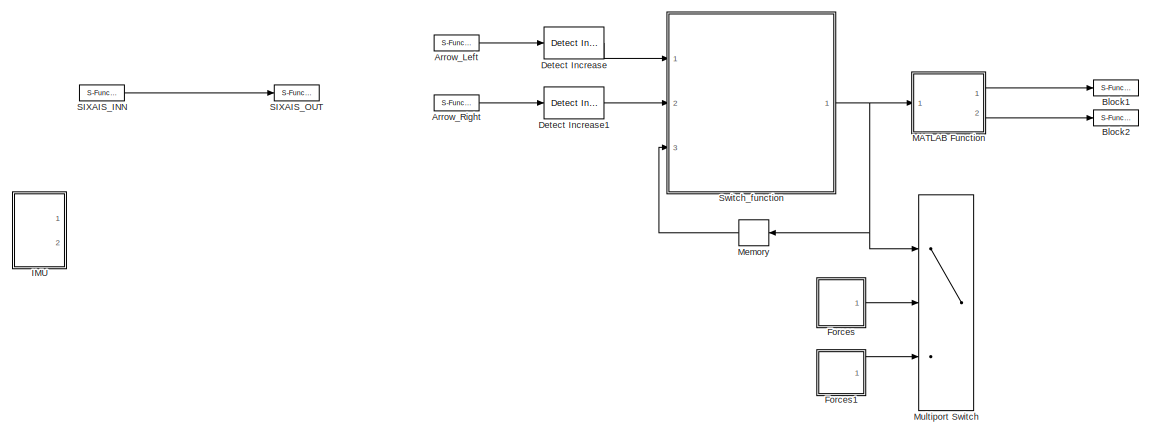
[diagram: root canvas - part 1/5, top right region]
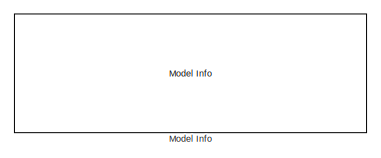
[diagram: root canvas - part 2/5, middle left region]
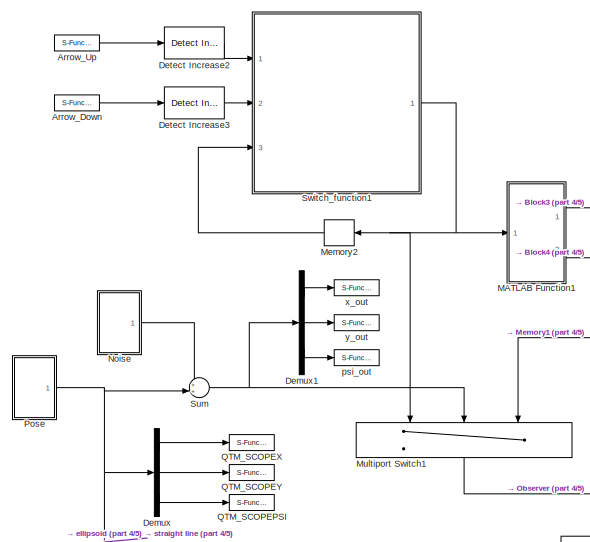
[diagram: root canvas - part 3/5, central region]
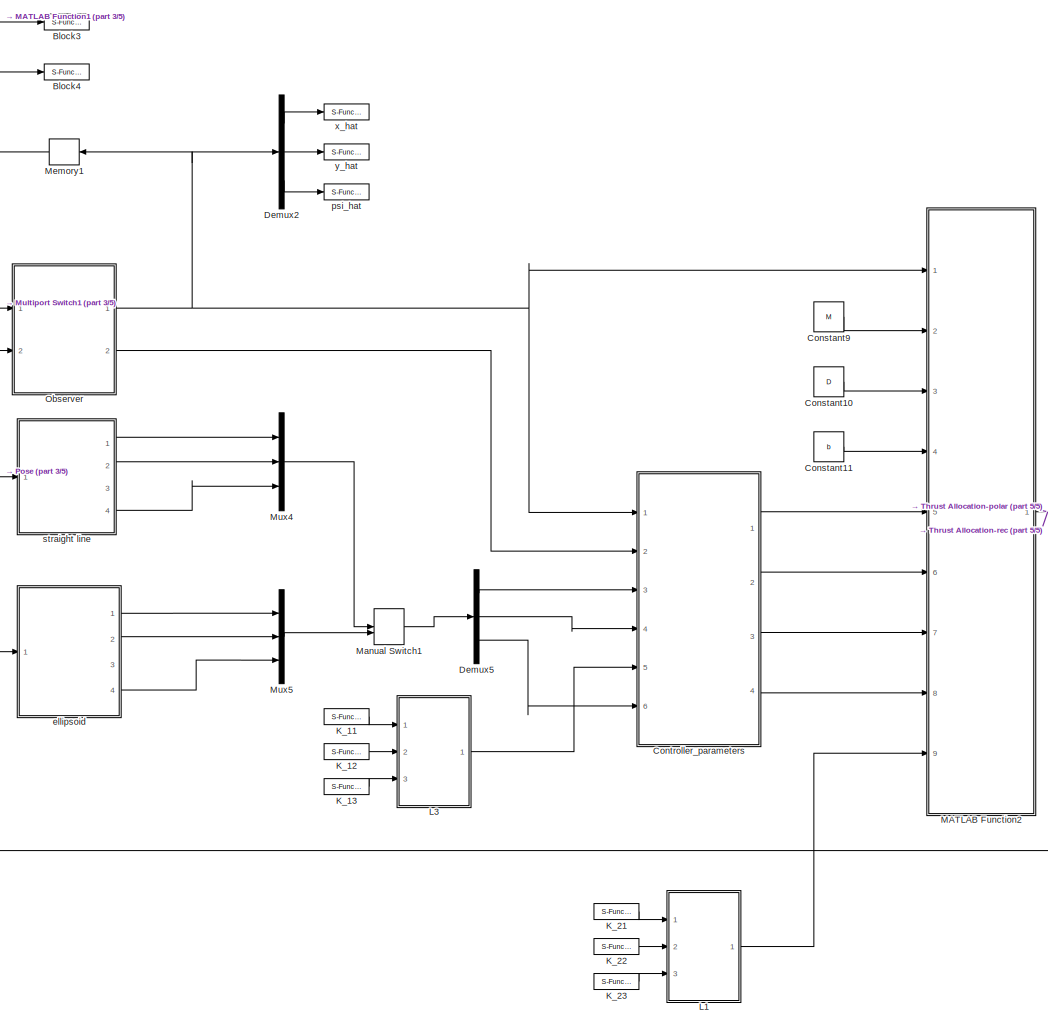
[diagram: root canvas - part 4/5, bottom center region]
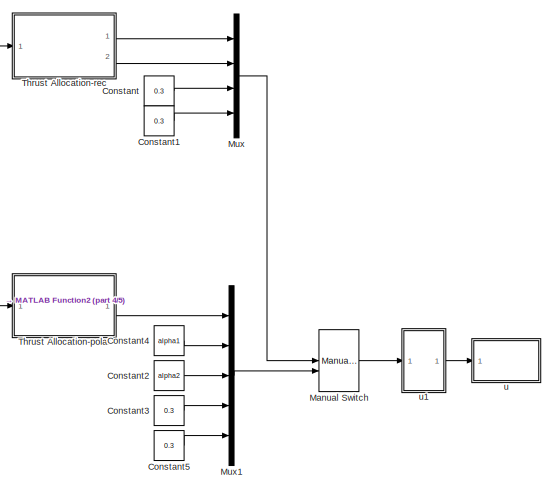
[diagram: root canvas - part 5/5, bottom right region]
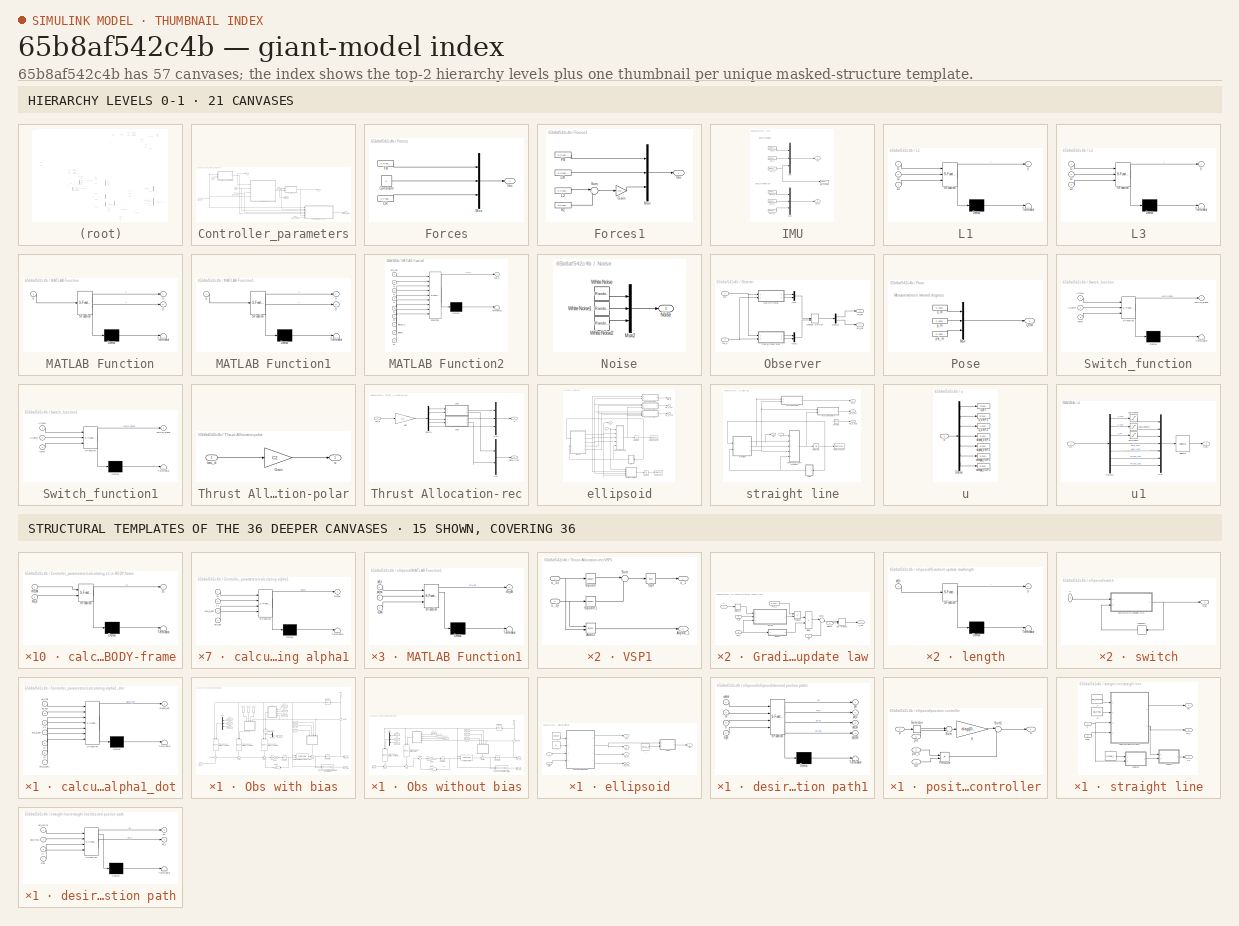
[diagram: thumbnail index - top-2 hierarchy levels (21 canvases) + 15 structural-template representatives of the remaining 36 canvases]
MODEL slx_65b8af542c4b
KIND model
CONFIG AbsTol = auto
CONFIG EnableMultiTasking = on
CONFIG FixedStep = 0.01
CONFIG MaxStep = auto
CONFIG MinStep = auto
CONFIG RelTol = 1e-3
CONFIG SampleTimeConstraint = Unconstrained
CONFIG Solver = ode4
CONFIG SolverName = ode4
CONFIG StartTime = 0.0
CONFIG StopTime = inf
BLOCK [S-Function] Arrow_Down
  CopyFcn = NIVeriStand_MDL_functions('', 'IO_copy');
  DeleteFcn = NIVeriStand_MDL_functions('', 'IO_delete');
  EnableBusSupport = off
  FunctionName = NIVeriStandIO
  MoveFcn = set_param(gcb, 'Mask', 'on');
  Parameters = width dtype portnum stime stype btype
  Ports = [0, 1]
  Priority = 5
  SFcnIsStateOwnerBlock = off
  SFunctionDeploymentMode = off
BLOCK [S-Function] Arrow_Left
  CopyFcn = NIVeriStand_MDL_functions('', 'IO_copy');
  DeleteFcn = NIVeriStand_MDL_functions('', 'IO_delete');
  EnableBusSupport = off
  FunctionName = NIVeriStandIO
  MoveFcn = set_param(gcb, 'Mask', 'on');
  Parameters = width dtype portnum stime stype btype
  Ports = [0, 1]
  Priority = 1
  SFcnIsStateOwnerBlock = off
  SFunctionDeploymentMode = off
BLOCK [S-Function] Arrow_Right
  CopyFcn = NIVeriStand_MDL_functions('', 'IO_copy');
  DeleteFcn = NIVeriStand_MDL_functions('', 'IO_delete');
  EnableBusSupport = off
  FunctionName = NIVeriStandIO
  MoveFcn = set_param(gcb, 'Mask', 'on');
  Parameters = width dtype portnum stime stype btype
  Ports = [0, 1]
  Priority = 3
  SFcnIsStateOwnerBlock = off
  SFunctionDeploymentMode = off
BLOCK [S-Function] Arrow_Up
  CopyFcn = NIVeriStand_MDL_functions('', 'IO_copy');
  DeleteFcn = NIVeriStand_MDL_functions('', 'IO_delete');
  EnableBusSupport = off
  FunctionName = NIVeriStandIO
  MoveFcn = set_param(gcb, 'Mask', 'on');
  Parameters = width dtype portnum stime stype btype
  Ports = [0, 1]
  Priority = 4
  SFcnIsStateOwnerBlock = off
  SFunctionDeploymentMode = off
BLOCK [S-Function] Block1
  CopyFcn = NIVeriStand_MDL_functions('', 'IO_copy');
  DeleteFcn = NIVeriStand_MDL_functions('', 'IO_delete');
  EnableBusSupport = off
  FunctionName = NIVeriStandIO
  MoveFcn = set_param(gcb, 'Mask', 'on');
  Parameters = width dtype portnum stime stype btype
  Ports = [1]
  Priority = 16
  SFcnIsStateOwnerBlock = off
  SFunctionDeploymentMode = off
BLOCK [S-Function] Block2
  CopyFcn = NIVeriStand_MDL_functions('', 'IO_copy');
  DeleteFcn = NIVeriStand_MDL_functions('', 'IO_delete');
  EnableBusSupport = off
  FunctionName = NIVeriStandIO
  MoveFcn = set_param(gcb, 'Mask', 'on');
  Parameters = width dtype portnum stime stype btype
  Ports = [1]
  Priority = 17
  SFcnIsStateOwnerBlock = off
  SFunctionDeploymentMode = off
BLOCK [S-Function] Block3
  CopyFcn = NIVeriStand_MDL_functions('', 'IO_copy');
  DeleteFcn = NIVeriStand_MDL_functions('', 'IO_delete');
  EnableBusSupport = off
  FunctionName = NIVeriStandIO
  MoveFcn = set_param(gcb, 'Mask', 'on');
  Parameters = width dtype portnum stime stype btype
  Ports = [1]
  Priority = 8
  SFcnIsStateOwnerBlock = off
  SFunctionDeploymentMode = off
BLOCK [S-Function] Block4
  CopyFcn = NIVeriStand_MDL_functions('', 'IO_copy');
  DeleteFcn = NIVeriStand_MDL_functions('', 'IO_delete');
  EnableBusSupport = off
  FunctionName = NIVeriStandIO
  MoveFcn = set_param(gcb, 'Mask', 'on');
  Parameters = width dtype portnum stime stype btype
  Ports = [1]
  Priority = 9
  SFcnIsStateOwnerBlock = off
  SFunctionDeploymentMode = off
BLOCK [Constant] Constant
  Value = 0.3
BLOCK [Constant] Constant1
  Value = 0.3
BLOCK [Constant] Constant10
  Value = D
BLOCK [Constant] Constant11
  Value = b
BLOCK [Constant] Constant2
  Value = alpha2
BLOCK [Constant] Constant3
  Value = 0.3
BLOCK [Constant] Constant4
  Value = alpha1
BLOCK [Constant] Constant5
  Value = 0.3
BLOCK [Constant] Constant9
  Value = M
BLOCK [SubSystem] Controller_parameters
  Ports = [6, 4]
  RequestExecContextInheritance = off
  Variant = off
BLOCK [Inport] Controller_parameters/K1
  IconDisplay = Port number
  Port = 5
BLOCK [Outport] Controller_parameters/alpha1
  IconDisplay = Port number
  Port = 4
BLOCK [Outport] Controller_parameters/alpha1_dot
  IconDisplay = Port number
  Port = 3
BLOCK [SubSystem] Controller_parameters/calculating alpha1
  ErrorFcn = Stateflow.Translate.translate
  PermitHierarchicalResolution = ExplicitOnly
  Ports = [4, 1]
  RequestExecContextInheritance = off
  SFBlockType = MATLAB Function
  TreatAsAtomicUnit = on
  Variant = off
BLOCK [Demux] Controller_parameters/calculating alpha1/ Demux 
  Outputs = 1
  Ports = [1, 1]
BLOCK [S-Function] Controller_parameters/calculating alpha1/ SFunction 
  EnableBusSupport = on
  FunctionName = sf_sfun
  PortCounts = [4 2]
  Ports = [4, 2]
  SFcnIsStateOwnerBlock = off
  SFunctionDeploymentMode = off
  Tag = Stateflow S-Function ctrl_custom 21
BLOCK [Terminator] Controller_parameters/calculating alpha1/ Terminator 
BLOCK [Inport] Controller_parameters/calculating alpha1/K1
  IconDisplay = Port number
  Port = 2
BLOCK [Outport] Controller_parameters/calculating alpha1/alpha1
  IconDisplay = Port number
BLOCK [Inport] Controller_parameters/calculating alpha1/eta_d_dot
  IconDisplay = Port number
  Port = 3
BLOCK [Inport] Controller_parameters/calculating alpha1/eta_hat
  IconDisplay = Port number
  Port = 4
BLOCK [Inport] Controller_parameters/calculating alpha1/z1
  IconDisplay = Port number
BLOCK [SubSystem] Controller_parameters/calculating alpha1_dot
  ErrorFcn = Stateflow.Translate.translate
  PermitHierarchicalResolution = ExplicitOnly
  Ports = [7, 1]
  RequestExecContextInheritance = off
  SFBlockType = MATLAB Function
  TreatAsAtomicUnit = on
  Variant = off
BLOCK [Demux] Controller_parameters/calculating alpha1_dot/ Demux 
  Outputs = 1
  Ports = [1, 1]
BLOCK [S-Function] Controller_parameters/calculating alpha1_dot/ SFunction 
  EnableBusSupport = on
  FunctionName = sf_sfun
  PortCounts = [7 2]
  Ports = [7, 2]
  SFcnIsStateOwnerBlock = off
  SFunctionDeploymentMode = off
  Tag = Stateflow S-Function ctrl_custom 23
BLOCK [Terminator] Controller_parameters/calculating alpha1_dot/ Terminator 
BLOCK [Inport] Controller_parameters/calculating alpha1_dot/K1
  IconDisplay = Port number
  Port = 3
BLOCK [Outport] Controller_parameters/calculating alpha1_dot/alpha1_dot
  IconDisplay = Port number
BLOCK [Inport] Controller_parameters/calculating alpha1_dot/eta_d_dot
  IconDisplay = Port number
  Port = 4
BLOCK [Inport] Controller_parameters/calculating alpha1_dot/eta_d_dot2
  IconDisplay = Port number
  Port = 7
BLOCK [Inport] Controller_parameters/calculating alpha1_dot/eta_hat
  IconDisplay = Port number
BLOCK [Inport] Controller_parameters/calculating alpha1_dot/nu_hat
  IconDisplay = Port number
  Port = 2
BLOCK [Inport] Controller_parameters/calculating alpha1_dot/z1
  IconDisplay = Port number
  Port = 5
BLOCK [Inport] Controller_parameters/calculating alpha1_dot/z2
  IconDisplay = Port number
  Port = 6
BLOCK [SubSystem] Controller_parameters/calculating z1 in BODY-frame
  ErrorFcn = Stateflow.Translate.translate
  PermitHierarchicalResolution = ExplicitOnly
  Ports = [2, 1]
  RequestExecContextInheritance = off
  SFBlockType = MATLAB Function
  TreatAsAtomicUnit = on
  Variant = off
BLOCK [Demux] Controller_parameters/calculating z1 in BODY-frame/ Demux 
  Outputs = 1
  Ports = [1, 1]
BLOCK [S-Function] Controller_parameters/calculating z1 in BODY-frame/ SFunction 
  EnableBusSupport = on
  FunctionName = sf_sfun
  PortCounts = [2 2]
  Ports = [2, 2]
  SFcnIsStateOwnerBlock = off
  SFunctionDeploymentMode = off
  Tag = Stateflow S-Function ctrl_custom 27
BLOCK [Terminator] Controller_parameters/calculating z1 in BODY-frame/ Terminator 
BLOCK [Inport] Controller_parameters/calculating z1 in BODY-frame/eta_d
  IconDisplay = Port number
  Port = 2
BLOCK [Inport] Controller_parameters/calculating z1 in BODY-frame/eta_hat
  IconDisplay = Port number
BLOCK [Outport] Controller_parameters/calculating z1 in BODY-frame/z1
  IconDisplay = Port number
BLOCK [SubSystem] Controller_parameters/calculating z2
  ErrorFcn = Stateflow.Translate.translate
  PermitHierarchicalResolution = ExplicitOnly
  Ports = [2, 1]
  RequestExecContextInheritance = off
  SFBlockType = MATLAB Function
  TreatAsAtomicUnit = on
  Variant = off
BLOCK [Demux] Controller_parameters/calculating z2/ Demux 
  Outputs = 1
  Ports = [1, 1]
BLOCK [S-Function] Controller_parameters/calculating z2/ SFunction 
  EnableBusSupport = on
  FunctionName = sf_sfun
  PortCounts = [2 2]
  Ports = [2, 2]
  SFcnIsStateOwnerBlock = off
  SFunctionDeploymentMode = off
  Tag = Stateflow S-Function ctrl_custom 28
BLOCK [Terminator] Controller_parameters/calculating z2/ Terminator 
BLOCK [Inport] Controller_parameters/calculating z2/alpha1
  IconDisplay = Port number
  Port = 2
BLOCK [Inport] Controller_parameters/calculating z2/nu
  IconDisplay = Port number
BLOCK [Outport] Controller_parameters/calculating z2/z2
  IconDisplay = Port number
BLOCK [Inport] Controller_parameters/eta_d
  IconDisplay = Port number
  Port = 3
BLOCK [Inport] Controller_parameters/eta_d_dot
  IconDisplay = Port number
  Port = 4
BLOCK [Inport] Controller_parameters/eta_d_dot2
  IconDisplay = Port number
  Port = 6
BLOCK [Inport] Controller_parameters/eta_hat
  IconDisplay = Port number
BLOCK [Inport] Controller_parameters/nu_hat
  IconDisplay = Port number
  Port = 2
BLOCK [Outport] Controller_parameters/z1
  IconDisplay = Port number
BLOCK [Outport] Controller_parameters/z2
  IconDisplay = Port number
  Port = 2
BLOCK [Demux] Demux
  DisplayOption = bar
  Outputs = 3
  Ports = [1, 3]
BLOCK [Demux] Demux1
  DisplayOption = bar
  Outputs = 3
  Ports = [1, 3]
BLOCK [Demux] Demux2
  DisplayOption = bar
  Outputs = 3
  Ports = [1, 3]
BLOCK [Demux] Demux5
  DisplayOption = bar
  Outputs = 3
  Ports = [1, 3]
BLOCK [Reference] Detect Increase  REF=simulink/Logic and Bit
Operations/Detect
Increase
  Ports = [1, 1]
  SourceBlock = simulink/Logic and Bit\nOperations/Detect\nIncrease
  SourceType = Detect Increase
BLOCK [Reference] Detect Increase1  REF=simulink/Logic and Bit
Operations/Detect
Increase
  Ports = [1, 1]
  SourceBlock = simulink/Logic and Bit\nOperations/Detect\nIncrease
  SourceType = Detect Increase
BLOCK [Reference] Detect Increase2  REF=simulink/Logic and Bit
Operations/Detect
Increase
  Ports = [1, 1]
  SourceBlock = simulink/Logic and Bit\nOperations/Detect\nIncrease
  SourceType = Detect Increase
BLOCK [Reference] Detect Increase3  REF=simulink/Logic and Bit
Operations/Detect
Increase
  Ports = [1, 1]
  SourceBlock = simulink/Logic and Bit\nOperations/Detect\nIncrease
  SourceType = Detect Increase
BLOCK [SubSystem] Forces
  Ports = [0, 1]
  RequestExecContextInheritance = off
  Variant = off
BLOCK [Constant] Forces/Constant
  Value = 0
BLOCK [S-Function] Forces/FB
  CopyFcn = NIVeriStand_MDL_functions('', 'IO_copy');
  DeleteFcn = NIVeriStand_MDL_functions('', 'IO_delete');
  EnableBusSupport = off
  FunctionName = NIVeriStandIO
  MoveFcn = set_param(gcb, 'Mask', 'on');
  Parameters = width dtype portnum stime stype btype
  Ports = [0, 1]
  Priority = 2
  SFcnIsStateOwnerBlock = off
  SFunctionDeploymentMode = off
BLOCK [S-Function] Forces/LR
  CopyFcn = NIVeriStand_MDL_functions('', 'IO_copy');
  DeleteFcn = NIVeriStand_MDL_functions('', 'IO_delete');
  EnableBusSupport = off
  FunctionName = NIVeriStandIO
  MoveFcn = set_param(gcb, 'Mask', 'on');
  Parameters = width dtype portnum stime stype btype
  Ports = [0, 1]
  Priority = 1
  SFcnIsStateOwnerBlock = off
  SFunctionDeploymentMode = off
BLOCK [Mux] Forces/Mux
  DisplayOption = bar
  Inputs = 3
  Ports = [3, 1]
BLOCK [Outport] Forces/tau
  IconDisplay = Port number
BLOCK [SubSystem] Forces1
  Ports = [0, 1]
  RequestExecContextInheritance = off
  Variant = off
BLOCK [S-Function] Forces1/FB
  CopyFcn = NIVeriStand_MDL_functions('', 'IO_copy');
  DeleteFcn = NIVeriStand_MDL_functions('', 'IO_delete');
  EnableBusSupport = off
  FunctionName = NIVeriStandIO
  MoveFcn = set_param(gcb, 'Mask', 'on');
  Parameters = width dtype portnum stime stype btype
  Ports = [0, 1]
  Priority = 2
  SFcnIsStateOwnerBlock = off
  SFunctionDeploymentMode = off
BLOCK [Gain] Forces1/Gain
  Gain = 0.5
  OutDataTypeStr = Inherit: Inherit via internal rule
  ParamDataTypeStr = Inherit: Inherit via internal rule
  SaturateOnIntegerOverflow = off
BLOCK [S-Function] Forces1/L2
  CopyFcn = NIVeriStand_MDL_functions('', 'IO_copy');
  DeleteFcn = NIVeriStand_MDL_functions('', 'IO_delete');
  EnableBusSupport = off
  FunctionName = NIVeriStandIO
  MoveFcn = set_param(gcb, 'Mask', 'on');
  Parameters = width dtype portnum stime stype btype
  Ports = [0, 1]
  Priority = 4
  SFcnIsStateOwnerBlock = off
  SFunctionDeploymentMode = off
BLOCK [S-Function] Forces1/LR
  CopyFcn = NIVeriStand_MDL_functions('', 'IO_copy');
  DeleteFcn = NIVeriStand_MDL_functions('', 'IO_delete');
  EnableBusSupport = off
  FunctionName = NIVeriStandIO
  MoveFcn = set_param(gcb, 'Mask', 'on');
  Parameters = width dtype portnum stime stype btype
  Ports = [0, 1]
  Priority = 1
  SFcnIsStateOwnerBlock = off
  SFunctionDeploymentMode = off
BLOCK [Mux] Forces1/Mux
  DisplayOption = bar
  Inputs = 3
  Ports = [3, 1]
BLOCK [S-Function] Forces1/R2
  CopyFcn = NIVeriStand_MDL_functions('', 'IO_copy');
  DeleteFcn = NIVeriStand_MDL_functions('', 'IO_delete');
  EnableBusSupport = off
  FunctionName = NIVeriStandIO
  MoveFcn = set_param(gcb, 'Mask', 'on');
  Parameters = width dtype portnum stime stype btype
  Ports = [0, 1]
  Priority = 3
  SFcnIsStateOwnerBlock = off
  SFunctionDeploymentMode = off
BLOCK [Sum] Forces1/Sum
  IconShape = round
  InputSameDT = off
  Inputs = |+-
  OutDataTypeStr = Inherit: Inherit via internal rule
  Ports = [2, 1]
  SaturateOnIntegerOverflow = off
BLOCK [Outport] Forces1/tau
  IconDisplay = Port number
BLOCK [SubSystem] IMU
  Ports = [0, 2]
  RequestExecContextInheritance = off
  Variant = off
BLOCK [Outport] IMU/Acc
  IconDisplay = Port number
BLOCK [S-Function] IMU/Acc_x
  CopyFcn = NIVeriStand_MDL_functions('', 'IO_copy');
  DeleteFcn = NIVeriStand_MDL_functions('', 'IO_delete');
  EnableBusSupport = off
  FunctionName = NIVeriStandIO
  MoveFcn = set_param(gcb, 'Mask', 'on');
  Parameters = width dtype portnum stime stype btype
  Ports = [0, 1]
  Priority = 1
  SFcnIsStateOwnerBlock = off
  SFunctionDeploymentMode = off
BLOCK [S-Function] IMU/Acc_y
  CopyFcn = NIVeriStand_MDL_functions('', 'IO_copy');
  DeleteFcn = NIVeriStand_MDL_functions('', 'IO_delete');
  EnableBusSupport = off
  FunctionName = NIVeriStandIO
  MoveFcn = set_param(gcb, 'Mask', 'on');
  Parameters = width dtype portnum stime stype btype
  Ports = [0, 1]
  Priority = 2
  SFcnIsStateOwnerBlock = off
  SFunctionDeploymentMode = off
BLOCK [S-Function] IMU/Acc_z
  CopyFcn = NIVeriStand_MDL_functions('', 'IO_copy');
  DeleteFcn = NIVeriStand_MDL_functions('', 'IO_delete');
  EnableBusSupport = off
  FunctionName = NIVeriStandIO
  MoveFcn = set_param(gcb, 'Mask', 'on');
  Parameters = width dtype portnum stime stype btype
  Ports = [0, 1]
  Priority = 3
  SFcnIsStateOwnerBlock = off
  SFunctionDeploymentMode = off
BLOCK [Outport] IMU/Gyro
  IconDisplay = Port number
  Port = 2
BLOCK [S-Function] IMU/Gyro_x
  CopyFcn = NIVeriStand_MDL_functions('', 'IO_copy');
  DeleteFcn = NIVeriStand_MDL_functions('', 'IO_delete');
  EnableBusSupport = off
  FunctionName = NIVeriStandIO
  MoveFcn = set_param(gcb, 'Mask', 'on');
  Parameters = width dtype portnum stime stype btype
  Ports = [0, 1]
  Priority = 4
  SFcnIsStateOwnerBlock = off
  SFunctionDeploymentMode = off
BLOCK [S-Function] IMU/Gyro_y
  CopyFcn = NIVeriStand_MDL_functions('', 'IO_copy');
  DeleteFcn = NIVeriStand_MDL_functions('', 'IO_delete');
  EnableBusSupport = off
  FunctionName = NIVeriStandIO
  MoveFcn = set_param(gcb, 'Mask', 'on');
  Parameters = width dtype portnum stime stype btype
  Ports = [0, 1]
  Priority = 5
  SFcnIsStateOwnerBlock = off
  SFunctionDeploymentMode = off
BLOCK [S-Function] IMU/Gyro_z
  CopyFcn = NIVeriStand_MDL_functions('', 'IO_copy');
  DeleteFcn = NIVeriStand_MDL_functions('', 'IO_delete');
  EnableBusSupport = off
  FunctionName = NIVeriStandIO
  MoveFcn = set_param(gcb, 'Mask', 'on');
  Parameters = width dtype portnum stime stype btype
  Ports = [0, 1]
  Priority = 6
  SFcnIsStateOwnerBlock = off
  SFunctionDeploymentMode = off
BLOCK [S-Function] IMU/IMU_SCOPEZ
  CopyFcn = NIVeriStand_MDL_functions('', 'IO_copy');
  DeleteFcn = NIVeriStand_MDL_functions('', 'IO_delete');
  EnableBusSupport = off
  FunctionName = NIVeriStandIO
  MoveFcn = set_param(gcb, 'Mask', 'on');
  Parameters = width dtype portnum stime stype btype
  Ports = [1]
  Priority = 1
  SFcnIsStateOwnerBlock = off
  SFunctionDeploymentMode = off
BLOCK [Mux] IMU/Mux
  DisplayOption = bar
  Inputs = 3
  Ports = [3, 1]
BLOCK [Mux] IMU/Mux1
  DisplayOption = bar
  Inputs = 3
  Ports = [3, 1]
BLOCK [S-Function] K_11
  CopyFcn = NIVeriStand_MDL_functions('', 'IO_copy');
  DeleteFcn = NIVeriStand_MDL_functions('', 'IO_delete');
  EnableBusSupport = off
  FunctionName = NIVeriStandIO
  MoveFcn = set_param(gcb, 'Mask', 'on');
  Parameters = width dtype portnum stime stype btype
  Ports = [0, 1]
  Priority = 6
  SFcnIsStateOwnerBlock = off
  SFunctionDeploymentMode = off
BLOCK [S-Function] K_12
  CopyFcn = NIVeriStand_MDL_functions('', 'IO_copy');
  DeleteFcn = NIVeriStand_MDL_functions('', 'IO_delete');
  EnableBusSupport = off
  FunctionName = NIVeriStandIO
  MoveFcn = set_param(gcb, 'Mask', 'on');
  Parameters = width dtype portnum stime stype btype
  Ports = [0, 1]
  Priority = 7
  SFcnIsStateOwnerBlock = off
  SFunctionDeploymentMode = off
BLOCK [S-Function] K_13
  CopyFcn = NIVeriStand_MDL_functions('', 'IO_copy');
  DeleteFcn = NIVeriStand_MDL_functions('', 'IO_delete');
  EnableBusSupport = off
  FunctionName = NIVeriStandIO
  MoveFcn = set_param(gcb, 'Mask', 'on');
  Parameters = width dtype portnum stime stype btype
  Ports = [0, 1]
  Priority = 8
  SFcnIsStateOwnerBlock = off
  SFunctionDeploymentMode = off
BLOCK [S-Function] K_21
  CopyFcn = NIVeriStand_MDL_functions('', 'IO_copy');
  DeleteFcn = NIVeriStand_MDL_functions('', 'IO_delete');
  EnableBusSupport = off
  FunctionName = NIVeriStandIO
  MoveFcn = set_param(gcb, 'Mask', 'on');
  Parameters = width dtype portnum stime stype btype
  Ports = [0, 1]
  Priority = 9
  SFcnIsStateOwnerBlock = off
  SFunctionDeploymentMode = off
BLOCK [S-Function] K_22
  CopyFcn = NIVeriStand_MDL_functions('', 'IO_copy');
  DeleteFcn = NIVeriStand_MDL_functions('', 'IO_delete');
  EnableBusSupport = off
  FunctionName = NIVeriStandIO
  MoveFcn = set_param(gcb, 'Mask', 'on');
  Parameters = width dtype portnum stime stype btype
  Ports = [0, 1]
  Priority = 10
  SFcnIsStateOwnerBlock = off
  SFunctionDeploymentMode = off
BLOCK [S-Function] K_23
  CopyFcn = NIVeriStand_MDL_functions('', 'IO_copy');
  DeleteFcn = NIVeriStand_MDL_functions('', 'IO_delete');
  EnableBusSupport = off
  FunctionName = NIVeriStandIO
  MoveFcn = set_param(gcb, 'Mask', 'on');
  Parameters = width dtype portnum stime stype btype
  Ports = [0, 1]
  Priority = 11
  SFcnIsStateOwnerBlock = off
  SFunctionDeploymentMode = off
BLOCK [SubSystem] L1
  ErrorFcn = Stateflow.Translate.translate
  PermitHierarchicalResolution = ExplicitOnly
  Ports = [3, 1]
  RequestExecContextInheritance = off
  SFBlockType = MATLAB Function
  TreatAsAtomicUnit = on
  Variant = off
BLOCK [Demux] L1/ Demux 
  Outputs = 1
  Ports = [1, 1]
BLOCK [S-Function] L1/ SFunction 
  EnableBusSupport = on
  FunctionName = sf_sfun
  PortCounts = [3 2]
  Ports = [3, 2]
  SFcnIsStateOwnerBlock = off
  SFunctionDeploymentMode = off
  Tag = Stateflow S-Function ctrl_custom 32
BLOCK [Terminator] L1/ Terminator 
BLOCK [Inport] L1/L1
  IconDisplay = Port number
BLOCK [Inport] L1/L2
  IconDisplay = Port number
  Port = 2
BLOCK [Inport] L1/L3
  IconDisplay = Port number
  Port = 3
BLOCK [Outport] L1/y
  IconDisplay = Port number
BLOCK [SubSystem] L3
  ErrorFcn = Stateflow.Translate.translate
  PermitHierarchicalResolution = ExplicitOnly
  Ports = [3, 1]
  RequestExecContextInheritance = off
  SFBlockType = MATLAB Function
  TreatAsAtomicUnit = on
  Variant = off
BLOCK [Demux] L3/ Demux 
  Outputs = 1
  Ports = [1, 1]
BLOCK [S-Function] L3/ SFunction 
  EnableBusSupport = on
  FunctionName = sf_sfun
  PortCounts = [3 2]
  Ports = [3, 2]
  SFcnIsStateOwnerBlock = off
  SFunctionDeploymentMode = off
  Tag = Stateflow S-Function ctrl_custom 31
BLOCK [Terminator] L3/ Terminator 
BLOCK [Inport] L3/L1
  IconDisplay = Port number
BLOCK [Inport] L3/L2
  IconDisplay = Port number
  Port = 2
BLOCK [Inport] L3/L3
  IconDisplay = Port number
  Port = 3
BLOCK [Outport] L3/y
  IconDisplay = Port number
BLOCK [SubSystem] MATLAB Function
  ErrorFcn = Stateflow.Translate.translate
  PermitHierarchicalResolution = ExplicitOnly
  Ports = [1, 2]
  RequestExecContextInheritance = off
  SFBlockType = MATLAB Function
  TreatAsAtomicUnit = on
  Variant = off
BLOCK [Demux] MATLAB Function/ Demux 
  Outputs = 1
  Ports = [1, 1]
BLOCK [S-Function] MATLAB Function/ SFunction 
  EnableBusSupport = on
  FunctionName = sf_sfun
  PortCounts = [1 3]
  Ports = [1, 3]
  SFcnIsStateOwnerBlock = off
  SFunctionDeploymentMode = off
  Tag = Stateflow S-Function ctrl_custom 2
BLOCK [Terminator] MATLAB Function/ Terminator 
BLOCK [Inport] MATLAB Function/u
  IconDisplay = Port number
BLOCK [Outport] MATLAB Function/x
  IconDisplay = Port number
BLOCK [Outport] MATLAB Function/y
  IconDisplay = Port number
  Port = 2
BLOCK [SubSystem] MATLAB Function1
  ErrorFcn = Stateflow.Translate.translate
  PermitHierarchicalResolution = ExplicitOnly
  Ports = [1, 2]
  RequestExecContextInheritance = off
  SFBlockType = MATLAB Function
  TreatAsAtomicUnit = on
  Variant = off
BLOCK [Demux] MATLAB Function1/ Demux 
  Outputs = 1
  Ports = [1, 1]
BLOCK [S-Function] MATLAB Function1/ SFunction 
  EnableBusSupport = on
  FunctionName = sf_sfun
  PortCounts = [1 3]
  Ports = [1, 3]
  SFcnIsStateOwnerBlock = off
  SFunctionDeploymentMode = off
  Tag = Stateflow S-Function ctrl_custom 9
BLOCK [Terminator] MATLAB Function1/ Terminator 
BLOCK [Inport] MATLAB Function1/u
  IconDisplay = Port number
BLOCK [Outport] MATLAB Function1/x
  IconDisplay = Port number
BLOCK [Outport] MATLAB Function1/y
  IconDisplay = Port number
  Port = 2
BLOCK [SubSystem] MATLAB Function2
  ErrorFcn = Stateflow.Translate.translate
  PermitHierarchicalResolution = ExplicitOnly
  Ports = [9, 1]
  RequestExecContextInheritance = off
  SFBlockType = MATLAB Function
  TreatAsAtomicUnit = on
  Variant = off
BLOCK [Demux] MATLAB Function2/ Demux 
  Outputs = 1
  Ports = [1, 1]
BLOCK [S-Function] MATLAB Function2/ SFunction 
  EnableBusSupport = on
  FunctionName = sf_sfun
  PortCounts = [9 2]
  Ports = [9, 2]
  SFcnIsStateOwnerBlock = off
  SFunctionDeploymentMode = off
  Tag = Stateflow S-Function ctrl_custom 29
BLOCK [Terminator] MATLAB Function2/ Terminator 
BLOCK [Inport] MATLAB Function2/D
  IconDisplay = Port number
  Port = 3
BLOCK [Inport] MATLAB Function2/K2
  IconDisplay = Port number
  Port = 9
BLOCK [Inport] MATLAB Function2/M
  IconDisplay = Port number
  Port = 2
BLOCK [Inport] MATLAB Function2/alpha1
  IconDisplay = Port number
  Port = 8
BLOCK [Inport] MATLAB Function2/alpha1_s
  IconDisplay = Port number
  Port = 7
BLOCK [Inport] MATLAB Function2/b
  IconDisplay = Port number
  Port = 4
BLOCK [Inport] MATLAB Function2/eta_hat
  IconDisplay = Port number
BLOCK [Outport] MATLAB Function2/tau_d
  IconDisplay = Port number
BLOCK [Inport] MATLAB Function2/z1
  IconDisplay = Port number
  Port = 5
BLOCK [Inport] MATLAB Function2/z2
  IconDisplay = Port number
  Port = 6
BLOCK [ManualSwitch] Manual Switch
BLOCK [ManualSwitch] Manual Switch1
BLOCK [Memory] Memory
  X0 = 4
BLOCK [Memory] Memory1
  X0 = 4
BLOCK [Memory] Memory2
  X0 = 4
BLOCK [Reference] Model Info  REF=simulink/Model-Wide
Utilities/Model Info
  Ports = []
  SourceBlock = simulink/Model-Wide\nUtilities/Model Info
  SourceType = CMBlock
BLOCK [MultiPortSwitch] Multiport Switch
  InputSameDT = off
  Inputs = 2
  Ports = [3, 1]
  SaturateOnIntegerOverflow = off
BLOCK [MultiPortSwitch] Multiport Switch1
  InputSameDT = off
  Inputs = 2
  Ports = [3, 1]
  SaturateOnIntegerOverflow = off
BLOCK [Mux] Mux
  DisplayOption = bar
  Ports = [4, 1]
BLOCK [Mux] Mux1
  DisplayOption = bar
  Inputs = 5
  Ports = [5, 1]
BLOCK [Mux] Mux4
  DisplayOption = bar
  Inputs = 3
  Ports = [3, 1]
BLOCK [Mux] Mux5
  DisplayOption = bar
  Inputs = 3
  Ports = [3, 1]
BLOCK [SubSystem] Noise
  Ports = [0, 1]
  RequestExecContextInheritance = off
  Variant = off
BLOCK [Mux] Noise/Mux2
  DisplayOption = bar
  Inputs = 3
  Ports = [3, 1]
BLOCK [Outport] Noise/Noise
  IconDisplay = Port number
BLOCK [RandomNumber] Noise/White Noise
  DisableCoverage = on
  Variance = 0.05
BLOCK [RandomNumber] Noise/White Noise1
  DisableCoverage = on
  Variance = 0.05
BLOCK [RandomNumber] Noise/White Noise2
  DisableCoverage = on
  Variance = 0.05
BLOCK [SubSystem] Observer
  Ports = [2, 2]
  RequestExecContextInheritance = off
  Variant = off
BLOCK [Demux] Observer/Demux
  DisplayOption = bar
  Outputs = 2
  Ports = [1, 2]
BLOCK [ManualSwitch] Observer/Manual Switch
BLOCK [Mux] Observer/Mux
  DisplayOption = bar
  Inputs = 2
  Ports = [2, 1]
BLOCK [Mux] Observer/Mux1
  DisplayOption = bar
  Inputs = 2
  Ports = [2, 1]
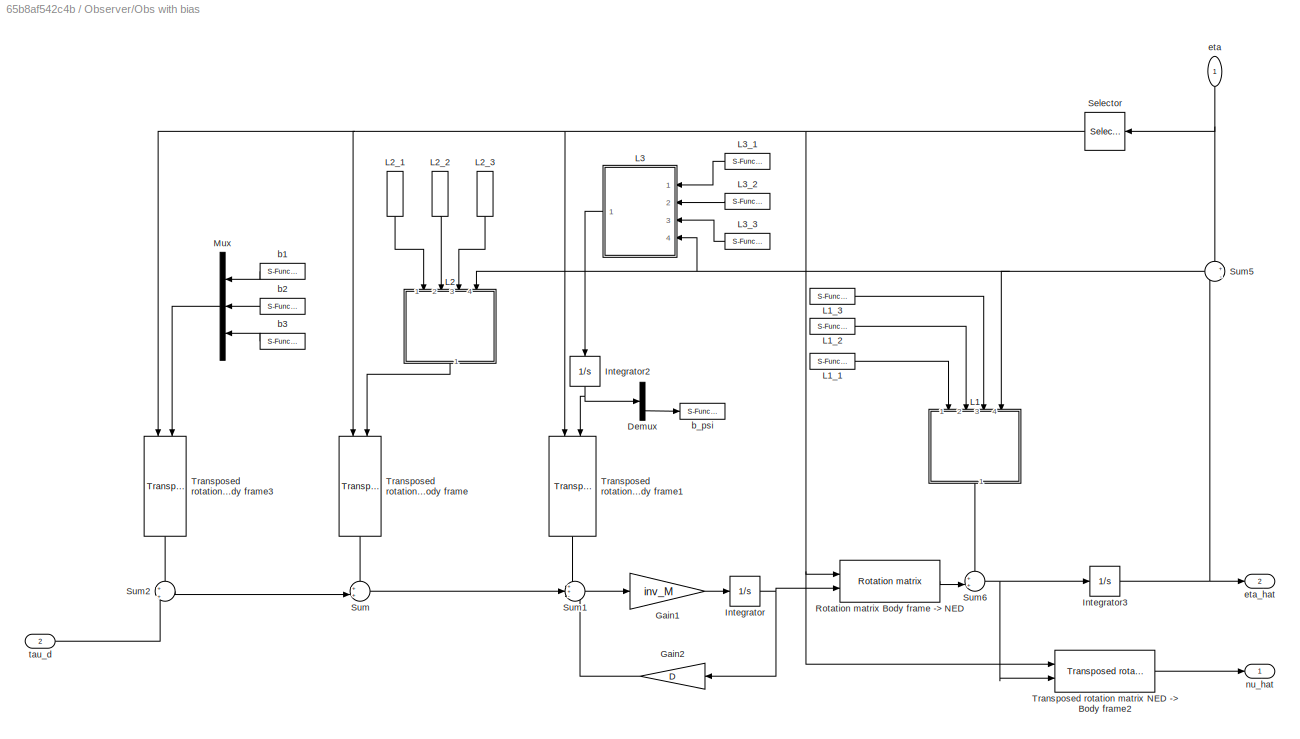
BLOCK [SubSystem] Observer/Obs with bias
  Ports = [2, 2]
  RequestExecContextInheritance = off
  Variant = off
BLOCK [Demux] Observer/Obs with bias/Demux
  DisplayOption = bar
  Outputs = 3
  Ports = [1, 3]
BLOCK [Gain] Observer/Obs with bias/Gain1
  Gain = inv_M
  Multiplication = Matrix(K*u)
  OutDataTypeStr = Inherit: Inherit via internal rule
  ParamDataTypeStr = Inherit: Inherit via internal rule
  SaturateOnIntegerOverflow = off
BLOCK [Gain] Observer/Obs with bias/Gain2
  Gain = D
  Multiplication = Matrix(K*u)
  OutDataTypeStr = Inherit: Inherit via internal rule
  ParamDataTypeStr = Inherit: Inherit via internal rule
  SaturateOnIntegerOverflow = off
BLOCK [Integrator] Observer/Obs with bias/Integrator
  Ports = [1, 1]
BLOCK [Integrator] Observer/Obs with bias/Integrator2
  Ports = [1, 1]
BLOCK [Integrator] Observer/Obs with bias/Integrator3
  Ports = [1, 1]
BLOCK [SubSystem] Observer/Obs with bias/L1
  ErrorFcn = Stateflow.Translate.translate
  PermitHierarchicalResolution = ExplicitOnly
  Ports = [4, 1]
  RequestExecContextInheritance = off
  SFBlockType = MATLAB Function
  TreatAsAtomicUnit = on
  Variant = off
BLOCK [Demux] Observer/Obs with bias/L1/ Demux 
  Outputs = 1
  Ports = [1, 1]
BLOCK [S-Function] Observer/Obs with bias/L1/ SFunction 
  EnableBusSupport = on
  FunctionName = sf_sfun
  PortCounts = [4 2]
  Ports = [4, 2]
  SFcnIsStateOwnerBlock = off
  SFunctionDeploymentMode = off
  Tag = Stateflow S-Function ctrl_custom 4
BLOCK [Terminator] Observer/Obs with bias/L1/ Terminator 
BLOCK [Inport] Observer/Obs with bias/L1/L1
  IconDisplay = Port number
BLOCK [Inport] Observer/Obs with bias/L1/L2
  IconDisplay = Port number
  Port = 2
BLOCK [Inport] Observer/Obs with bias/L1/L3
  IconDisplay = Port number
  Port = 3
BLOCK [Inport] Observer/Obs with bias/L1/u
  IconDisplay = Port number
  Port = 4
BLOCK [Outport] Observer/Obs with bias/L1/y
  IconDisplay = Port number
BLOCK [S-Function] Observer/Obs with bias/L1_1
  CopyFcn = NIVeriStand_MDL_functions('', 'IO_copy');
  DeleteFcn = NIVeriStand_MDL_functions('', 'IO_delete');
  EnableBusSupport = off
  FunctionName = NIVeriStandIO
  MoveFcn = set_param(gcb, 'Mask', 'on');
  Parameters = width dtype portnum stime stype btype
  Ports = [0, 1]
  Priority = 1
  SFcnIsStateOwnerBlock = off
  SFunctionDeploymentMode = off
BLOCK [S-Function] Observer/Obs with bias/L1_2
  CopyFcn = NIVeriStand_MDL_functions('', 'IO_copy');
  DeleteFcn = NIVeriStand_MDL_functions('', 'IO_delete');
  EnableBusSupport = off
  FunctionName = NIVeriStandIO
  MoveFcn = set_param(gcb, 'Mask', 'on');
  Parameters = width dtype portnum stime stype btype
  Ports = [0, 1]
  Priority = 2
  SFcnIsStateOwnerBlock = off
  SFunctionDeploymentMode = off
BLOCK [S-Function] Observer/Obs with bias/L1_3
  CopyFcn = NIVeriStand_MDL_functions('', 'IO_copy');
  DeleteFcn = NIVeriStand_MDL_functions('', 'IO_delete');
  EnableBusSupport = off
  FunctionName = NIVeriStandIO
  MoveFcn = set_param(gcb, 'Mask', 'on');
  Parameters = width dtype portnum stime stype btype
  Ports = [0, 1]
  Priority = 3
  SFcnIsStateOwnerBlock = off
  SFunctionDeploymentMode = off
BLOCK [SubSystem] Observer/Obs with bias/L2
  ErrorFcn = Stateflow.Translate.translate
  PermitHierarchicalResolution = ExplicitOnly
  Ports = [4, 1]
  RequestExecContextInheritance = off
  SFBlockType = MATLAB Function
  TreatAsAtomicUnit = on
  Variant = off
BLOCK [Demux] Observer/Obs with bias/L2/ Demux 
  Outputs = 1
  Ports = [1, 1]
BLOCK [S-Function] Observer/Obs with bias/L2/ SFunction 
  EnableBusSupport = on
  FunctionName = sf_sfun
  PortCounts = [4 2]
  Ports = [4, 2]
  SFcnIsStateOwnerBlock = off
  SFunctionDeploymentMode = off
  Tag = Stateflow S-Function ctrl_custom 5
BLOCK [Terminator] Observer/Obs with bias/L2/ Terminator 
BLOCK [Inport] Observer/Obs with bias/L2/L1
  IconDisplay = Port number
BLOCK [Inport] Observer/Obs with bias/L2/L2
  IconDisplay = Port number
  Port = 2
BLOCK [Inport] Observer/Obs with bias/L2/L3
  IconDisplay = Port number
  Port = 3
BLOCK [Inport] Observer/Obs with bias/L2/u
  IconDisplay = Port number
  Port = 4
BLOCK [Outport] Observer/Obs with bias/L2/y
  IconDisplay = Port number
BLOCK [S-Function] Observer/Obs with bias/L2_1
  CopyFcn = NIVeriStand_MDL_functions('', 'IO_copy');
  DeleteFcn = NIVeriStand_MDL_functions('', 'IO_delete');
  EnableBusSupport = off
  FunctionName = NIVeriStandIO
  MoveFcn = set_param(gcb, 'Mask', 'on');
  Parameters = width dtype portnum stime stype btype
  Ports = [0, 1]
  Priority = 4
  SFcnIsStateOwnerBlock = off
  SFunctionDeploymentMode = off
BLOCK [S-Function] Observer/Obs with bias/L2_2
  CopyFcn = NIVeriStand_MDL_functions('', 'IO_copy');
  DeleteFcn = NIVeriStand_MDL_functions('', 'IO_delete');
  EnableBusSupport = off
  FunctionName = NIVeriStandIO
  MoveFcn = set_param(gcb, 'Mask', 'on');
  Parameters = width dtype portnum stime stype btype
  Ports = [0, 1]
  Priority = 5
  SFcnIsStateOwnerBlock = off
  SFunctionDeploymentMode = off
BLOCK [S-Function] Observer/Obs with bias/L2_3
  CopyFcn = NIVeriStand_MDL_functions('', 'IO_copy');
  DeleteFcn = NIVeriStand_MDL_functions('', 'IO_delete');
  EnableBusSupport = off
  FunctionName = NIVeriStandIO
  MoveFcn = set_param(gcb, 'Mask', 'on');
  Parameters = width dtype portnum stime stype btype
  Ports = [0, 1]
  Priority = 6
  SFcnIsStateOwnerBlock = off
  SFunctionDeploymentMode = off
BLOCK [SubSystem] Observer/Obs with bias/L3
  ErrorFcn = Stateflow.Translate.translate
  PermitHierarchicalResolution = ExplicitOnly
  Ports = [4, 1]
  RequestExecContextInheritance = off
  SFBlockType = MATLAB Function
  TreatAsAtomicUnit = on
  Variant = off
BLOCK [Demux] Observer/Obs with bias/L3/ Demux 
  Outputs = 1
  Ports = [1, 1]
BLOCK [S-Function] Observer/Obs with bias/L3/ SFunction 
  EnableBusSupport = on
  FunctionName = sf_sfun
  PortCounts = [4 2]
  Ports = [4, 2]
  SFcnIsStateOwnerBlock = off
  SFunctionDeploymentMode = off
  Tag = Stateflow S-Function ctrl_custom 6
BLOCK [Terminator] Observer/Obs with bias/L3/ Terminator 
BLOCK [Inport] Observer/Obs with bias/L3/L1
  IconDisplay = Port number
BLOCK [Inport] Observer/Obs with bias/L3/L2
  IconDisplay = Port number
  Port = 2
BLOCK [Inport] Observer/Obs with bias/L3/L3
  IconDisplay = Port number
  Port = 3
BLOCK [Inport] Observer/Obs with bias/L3/u
  IconDisplay = Port number
  Port = 4
BLOCK [Outport] Observer/Obs with bias/L3/y
  IconDisplay = Port number
BLOCK [S-Function] Observer/Obs with bias/L3_1
  CopyFcn = NIVeriStand_MDL_functions('', 'IO_copy');
  DeleteFcn = NIVeriStand_MDL_functions('', 'IO_delete');
  EnableBusSupport = off
  FunctionName = NIVeriStandIO
  MoveFcn = set_param(gcb, 'Mask', 'on');
  Parameters = width dtype portnum stime stype btype
  Ports = [0, 1]
  Priority = 9
  SFcnIsStateOwnerBlock = off
  SFunctionDeploymentMode = off
BLOCK [S-Function] Observer/Obs with bias/L3_2
  CopyFcn = NIVeriStand_MDL_functions('', 'IO_copy');
  DeleteFcn = NIVeriStand_MDL_functions('', 'IO_delete');
  EnableBusSupport = off
  FunctionName = NIVeriStandIO
  MoveFcn = set_param(gcb, 'Mask', 'on');
  Parameters = width dtype portnum stime stype btype
  Ports = [0, 1]
  Priority = 8
  SFcnIsStateOwnerBlock = off
  SFunctionDeploymentMode = off
BLOCK [S-Function] Observer/Obs with bias/L3_3
  CopyFcn = NIVeriStand_MDL_functions('', 'IO_copy');
  DeleteFcn = NIVeriStand_MDL_functions('', 'IO_delete');
  EnableBusSupport = off
  FunctionName = NIVeriStandIO
  MoveFcn = set_param(gcb, 'Mask', 'on');
  Parameters = width dtype portnum stime stype btype
  Ports = [0, 1]
  Priority = 7
  SFcnIsStateOwnerBlock = off
  SFunctionDeploymentMode = off
BLOCK [Mux] Observer/Obs with bias/Mux
  DisplayOption = bar
  Inputs = 3
  Ports = [3, 1]
BLOCK [Reference] Observer/Obs with bias/Rotation matrix Body frame -> NED  REF=lib/Rotation matrix  (lib defined in slx_8e0b7e7613f0, slx_8fc754c0eda6, +7 more)
  Ports = [2, 1]
  SourceBlock = lib/Rotation matrix
  SourceType = SubSystem
BLOCK [Selector] Observer/Obs with bias/Selector
  IndexOptions = Index vector (dialog)
  Indices = [ 3]
  InputPortWidth = 3
  OutputSizes = 1
  Ports = [1, 1]
BLOCK [Sum] Observer/Obs with bias/Sum
  IconShape = round
  InputSameDT = off
  Inputs = ++|
  OutDataTypeStr = Inherit: Inherit via internal rule
  Ports = [2, 1]
  SaturateOnIntegerOverflow = off
BLOCK [Sum] Observer/Obs with bias/Sum1
  IconShape = round
  InputSameDT = off
  Inputs = ++-
  OutDataTypeStr = Inherit: Inherit via internal rule
  Ports = [3, 1]
  SaturateOnIntegerOverflow = off
BLOCK [Sum] Observer/Obs with bias/Sum2
  IconShape = round
  InputSameDT = off
  Inputs = +|+
  OutDataTypeStr = Inherit: Inherit via internal rule
  Ports = [2, 1]
  SaturateOnIntegerOverflow = off
BLOCK [Sum] Observer/Obs with bias/Sum5
  IconShape = round
  InputSameDT = off
  Inputs = +|-
  OutDataTypeStr = Inherit: Inherit via internal rule
  Ports = [2, 1]
  SaturateOnIntegerOverflow = off
BLOCK [Sum] Observer/Obs with bias/Sum6
  IconShape = round
  InputSameDT = off
  Inputs = ++|
  OutDataTypeStr = Inherit: Inherit via internal rule
  Ports = [2, 1]
  SaturateOnIntegerOverflow = off
BLOCK [Reference] Observer/Obs with bias/Transposed rotation matrix NED -> Body frame  REF=lib/Transposed rotation matrix  (lib defined in slx_8e0b7e7613f0, slx_8fc754c0eda6, +7 more)
  Ports = [2, 1]
  SourceBlock = lib/Transposed rotation matrix
  SourceType = SubSystem
BLOCK [Reference] Observer/Obs with bias/Transposed rotation matrix NED -> Body frame1  REF=lib/Transposed rotation matrix  (lib defined in slx_8e0b7e7613f0, slx_8fc754c0eda6, +7 more)
  Ports = [2, 1]
  SourceBlock = lib/Transposed rotation matrix
  SourceType = SubSystem
BLOCK [Reference] Observer/Obs with bias/Transposed rotation matrix NED -> Body frame2  REF=lib/Transposed rotation matrix  (lib defined in slx_8e0b7e7613f0, slx_8fc754c0eda6, +7 more)
  Ports = [2, 1]
  SourceBlock = lib/Transposed rotation matrix
  SourceType = SubSystem
BLOCK [Reference] Observer/Obs with bias/Transposed rotation matrix NED -> Body frame3  REF=lib/Transposed rotation matrix  (lib defined in slx_8e0b7e7613f0, slx_8fc754c0eda6, +7 more)
  Ports = [2, 1]
  SourceBlock = lib/Transposed rotation matrix
  SourceType = SubSystem
BLOCK [S-Function] Observer/Obs with bias/b1
  CopyFcn = NIVeriStand_MDL_functions('', 'IO_copy');
  DeleteFcn = NIVeriStand_MDL_functions('', 'IO_delete');
  EnableBusSupport = off
  FunctionName = NIVeriStandIO
  MoveFcn = set_param(gcb, 'Mask', 'on');
  Parameters = width dtype portnum stime stype btype
  Ports = [0, 1]
  Priority = 10
  SFcnIsStateOwnerBlock = off
  SFunctionDeploymentMode = off
BLOCK [S-Function] Observer/Obs with bias/b2
  CopyFcn = NIVeriStand_MDL_functions('', 'IO_copy');
  DeleteFcn = NIVeriStand_MDL_functions('', 'IO_delete');
  EnableBusSupport = off
  FunctionName = NIVeriStandIO
  MoveFcn = set_param(gcb, 'Mask', 'on');
  Parameters = width dtype portnum stime stype btype
  Ports = [0, 1]
  Priority = 11
  SFcnIsStateOwnerBlock = off
  SFunctionDeploymentMode = off
BLOCK [S-Function] Observer/Obs with bias/b3
  CopyFcn = NIVeriStand_MDL_functions('', 'IO_copy');
  DeleteFcn = NIVeriStand_MDL_functions('', 'IO_delete');
  EnableBusSupport = off
  FunctionName = NIVeriStandIO
  MoveFcn = set_param(gcb, 'Mask', 'on');
  Parameters = width dtype portnum stime stype btype
  Ports = [0, 1]
  Priority = 12
  SFcnIsStateOwnerBlock = off
  SFunctionDeploymentMode = off
BLOCK [S-Function] Observer/Obs with bias/b_psi
  CopyFcn = NIVeriStand_MDL_functions('', 'IO_copy');
  DeleteFcn = NIVeriStand_MDL_functions('', 'IO_delete');
  EnableBusSupport = off
  FunctionName = NIVeriStandIO
  MoveFcn = set_param(gcb, 'Mask', 'on');
  Parameters = width dtype portnum stime stype btype
  Ports = [1]
  Priority = 1
  SFcnIsStateOwnerBlock = off
  SFunctionDeploymentMode = off
BLOCK [Inport] Observer/Obs with bias/eta
  IconDisplay = Port number
BLOCK [Outport] Observer/Obs with bias/eta_hat
  IconDisplay = Port number
  Port = 2
BLOCK [Outport] Observer/Obs with bias/nu_hat
  IconDisplay = Port number
BLOCK [Inport] Observer/Obs with bias/tau_d
  IconDisplay = Port number
  Port = 2
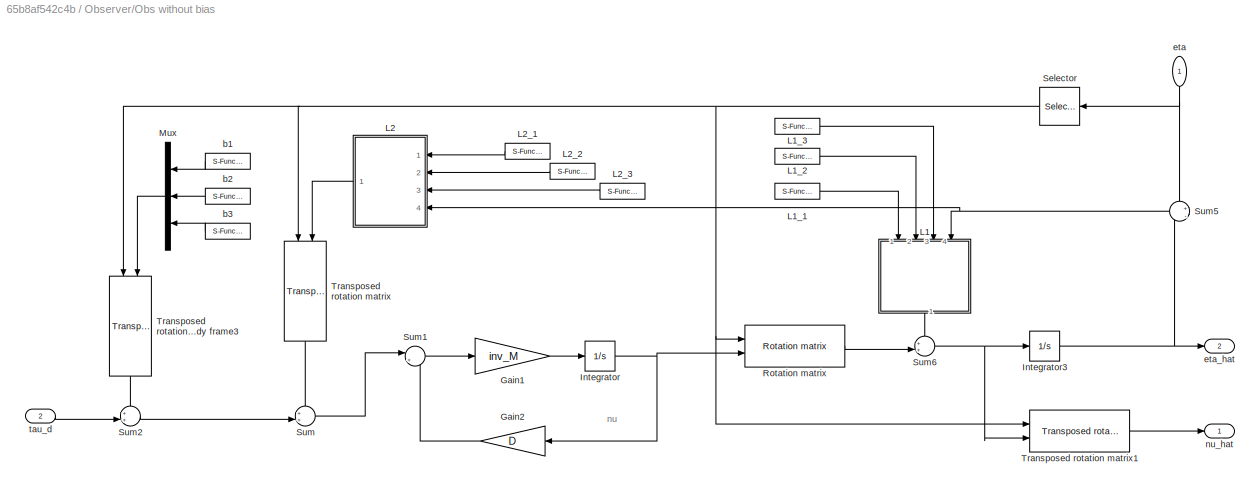
BLOCK [SubSystem] Observer/Obs without bias
  Ports = [2, 2]
  RequestExecContextInheritance = off
  Variant = off
BLOCK [Gain] Observer/Obs without bias/Gain1
  Gain = inv_M
  Multiplication = Matrix(K*u)
  OutDataTypeStr = Inherit: Inherit via internal rule
  ParamDataTypeStr = Inherit: Inherit via internal rule
  SaturateOnIntegerOverflow = off
BLOCK [Gain] Observer/Obs without bias/Gain2
  Gain = D
  Multiplication = Matrix(K*u)
  OutDataTypeStr = Inherit: Inherit via internal rule
  ParamDataTypeStr = Inherit: Inherit via internal rule
  SaturateOnIntegerOverflow = off
BLOCK [Integrator] Observer/Obs without bias/Integrator
  Ports = [1, 1]
BLOCK [Integrator] Observer/Obs without bias/Integrator3
  Ports = [1, 1]
BLOCK [SubSystem] Observer/Obs without bias/L1
  ErrorFcn = Stateflow.Translate.translate
  PermitHierarchicalResolution = ExplicitOnly
  Ports = [4, 1]
  RequestExecContextInheritance = off
  SFBlockType = MATLAB Function
  TreatAsAtomicUnit = on
  Variant = off
BLOCK [Demux] Observer/Obs without bias/L1/ Demux 
  Outputs = 1
  Ports = [1, 1]
BLOCK [S-Function] Observer/Obs without bias/L1/ SFunction 
  EnableBusSupport = on
  FunctionName = sf_sfun
  PortCounts = [4 2]
  Ports = [4, 2]
  SFcnIsStateOwnerBlock = off
  SFunctionDeploymentMode = off
  Tag = Stateflow S-Function ctrl_custom 1
BLOCK [Terminator] Observer/Obs without bias/L1/ Terminator 
BLOCK [Inport] Observer/Obs without bias/L1/L1
  IconDisplay = Port number
BLOCK [Inport] Observer/Obs without bias/L1/L2
  IconDisplay = Port number
  Port = 2
BLOCK [Inport] Observer/Obs without bias/L1/L3
  IconDisplay = Port number
  Port = 3
BLOCK [Inport] Observer/Obs without bias/L1/u
  IconDisplay = Port number
  Port = 4
BLOCK [Outport] Observer/Obs without bias/L1/y
  IconDisplay = Port number
BLOCK [S-Function] Observer/Obs without bias/L1_1
  CopyFcn = NIVeriStand_MDL_functions('', 'IO_copy');
  DeleteFcn = NIVeriStand_MDL_functions('', 'IO_delete');
  EnableBusSupport = off
  FunctionName = NIVeriStandIO
  MoveFcn = set_param(gcb, 'Mask', 'on');
  Parameters = width dtype portnum stime stype btype
  Ports = [0, 1]
  Priority = 1
  SFcnIsStateOwnerBlock = off
  SFunctionDeploymentMode = off
BLOCK [S-Function] Observer/Obs without bias/L1_2
  CopyFcn = NIVeriStand_MDL_functions('', 'IO_copy');
  DeleteFcn = NIVeriStand_MDL_functions('', 'IO_delete');
  EnableBusSupport = off
  FunctionName = NIVeriStandIO
  MoveFcn = set_param(gcb, 'Mask', 'on');
  Parameters = width dtype portnum stime stype btype
  Ports = [0, 1]
  Priority = 2
  SFcnIsStateOwnerBlock = off
  SFunctionDeploymentMode = off
BLOCK [S-Function] Observer/Obs without bias/L1_3
  CopyFcn = NIVeriStand_MDL_functions('', 'IO_copy');
  DeleteFcn = NIVeriStand_MDL_functions('', 'IO_delete');
  EnableBusSupport = off
  FunctionName = NIVeriStandIO
  MoveFcn = set_param(gcb, 'Mask', 'on');
  Parameters = width dtype portnum stime stype btype
  Ports = [0, 1]
  Priority = 3
  SFcnIsStateOwnerBlock = off
  SFunctionDeploymentMode = off
BLOCK [SubSystem] Observer/Obs without bias/L2
  ErrorFcn = Stateflow.Translate.translate
  PermitHierarchicalResolution = ExplicitOnly
  Ports = [4, 1]
  RequestExecContextInheritance = off
  SFBlockType = MATLAB Function
  TreatAsAtomicUnit = on
  Variant = off
BLOCK [Demux] Observer/Obs without bias/L2/ Demux 
  Outputs = 1
  Ports = [1, 1]
BLOCK [S-Function] Observer/Obs without bias/L2/ SFunction 
  EnableBusSupport = on
  FunctionName = sf_sfun
  PortCounts = [4 2]
  Ports = [4, 2]
  SFcnIsStateOwnerBlock = off
  SFunctionDeploymentMode = off
  Tag = Stateflow S-Function ctrl_custom 3
BLOCK [Terminator] Observer/Obs without bias/L2/ Terminator 
BLOCK [Inport] Observer/Obs without bias/L2/L1
  IconDisplay = Port number
BLOCK [Inport] Observer/Obs without bias/L2/L2
  IconDisplay = Port number
  Port = 2
BLOCK [Inport] Observer/Obs without bias/L2/L3
  IconDisplay = Port number
  Port = 3
BLOCK [Inport] Observer/Obs without bias/L2/u
  IconDisplay = Port number
  Port = 4
BLOCK [Outport] Observer/Obs without bias/L2/y
  IconDisplay = Port number
BLOCK [S-Function] Observer/Obs without bias/L2_1
  CopyFcn = NIVeriStand_MDL_functions('', 'IO_copy');
  DeleteFcn = NIVeriStand_MDL_functions('', 'IO_delete');
  EnableBusSupport = off
  FunctionName = NIVeriStandIO
  MoveFcn = set_param(gcb, 'Mask', 'on');
  Parameters = width dtype portnum stime stype btype
  Ports = [0, 1]
  Priority = 4
  SFcnIsStateOwnerBlock = off
  SFunctionDeploymentMode = off
BLOCK [S-Function] Observer/Obs without bias/L2_2
  CopyFcn = NIVeriStand_MDL_functions('', 'IO_copy');
  DeleteFcn = NIVeriStand_MDL_functions('', 'IO_delete');
  EnableBusSupport = off
  FunctionName = NIVeriStandIO
  MoveFcn = set_param(gcb, 'Mask', 'on');
  Parameters = width dtype portnum stime stype btype
  Ports = [0, 1]
  Priority = 5
  SFcnIsStateOwnerBlock = off
  SFunctionDeploymentMode = off
BLOCK [S-Function] Observer/Obs without bias/L2_3
  CopyFcn = NIVeriStand_MDL_functions('', 'IO_copy');
  DeleteFcn = NIVeriStand_MDL_functions('', 'IO_delete');
  EnableBusSupport = off
  FunctionName = NIVeriStandIO
  MoveFcn = set_param(gcb, 'Mask', 'on');
  Parameters = width dtype portnum stime stype btype
  Ports = [0, 1]
  Priority = 6
  SFcnIsStateOwnerBlock = off
  SFunctionDeploymentMode = off
BLOCK [Mux] Observer/Obs without bias/Mux
  DisplayOption = bar
  Inputs = 3
  Ports = [3, 1]
BLOCK [Reference] Observer/Obs without bias/Rotation matrix  REF=lib/Rotation matrix  (lib defined in slx_8e0b7e7613f0, slx_8fc754c0eda6, +7 more)
  Ports = [2, 1]
  SourceBlock = lib/Rotation matrix
  SourceType = SubSystem
BLOCK [Selector] Observer/Obs without bias/Selector
  IndexOptions = Index vector (dialog)
  Indices = [ 3]
  InputPortWidth = 3
  OutputSizes = 1
  Ports = [1, 1]
BLOCK [Sum] Observer/Obs without bias/Sum
  IconShape = round
  InputSameDT = off
  Inputs = ++|
  OutDataTypeStr = Inherit: Inherit via internal rule
  Ports = [2, 1]
  SaturateOnIntegerOverflow = off
BLOCK [Sum] Observer/Obs without bias/Sum1
  IconShape = round
  InputSameDT = off
  Inputs = |+-
  OutDataTypeStr = Inherit: Inherit via internal rule
  Ports = [2, 1]
  SaturateOnIntegerOverflow = off
BLOCK [Sum] Observer/Obs without bias/Sum2
  IconShape = round
  InputSameDT = off
  Inputs = ++|
  OutDataTypeStr = Inherit: Inherit via internal rule
  Ports = [2, 1]
  SaturateOnIntegerOverflow = off
BLOCK [Sum] Observer/Obs without bias/Sum5
  IconShape = round
  InputSameDT = off
  Inputs = +|-
  OutDataTypeStr = Inherit: Inherit via internal rule
  Ports = [2, 1]
  SaturateOnIntegerOverflow = off
BLOCK [Sum] Observer/Obs without bias/Sum6
  IconShape = round
  InputSameDT = off
  Inputs = ++|
  OutDataTypeStr = Inherit: Inherit via internal rule
  Ports = [2, 1]
  SaturateOnIntegerOverflow = off
BLOCK [Reference] Observer/Obs without bias/Transposed rotation matrix  REF=lib/Transposed rotation matrix  (lib defined in slx_8e0b7e7613f0, slx_8fc754c0eda6, +7 more)
  Ports = [2, 1]
  SourceBlock = lib/Transposed rotation matrix
  SourceType = SubSystem
BLOCK [Reference] Observer/Obs without bias/Transposed rotation matrix NED -> Body frame3  REF=lib/Transposed rotation matrix  (lib defined in slx_8e0b7e7613f0, slx_8fc754c0eda6, +7 more)
  Ports = [2, 1]
  SourceBlock = lib/Transposed rotation matrix
  SourceType = SubSystem
BLOCK [Reference] Observer/Obs without bias/Transposed rotation matrix1  REF=lib/Transposed rotation matrix  (lib defined in slx_8e0b7e7613f0, slx_8fc754c0eda6, +7 more)
  Ports = [2, 1]
  SourceBlock = lib/Transposed rotation matrix
  SourceType = SubSystem
BLOCK [S-Function] Observer/Obs without bias/b1
  CopyFcn = NIVeriStand_MDL_functions('', 'IO_copy');
  DeleteFcn = NIVeriStand_MDL_functions('', 'IO_delete');
  EnableBusSupport = off
  FunctionName = NIVeriStandIO
  MoveFcn = set_param(gcb, 'Mask', 'on');
  Parameters = width dtype portnum stime stype btype
  Ports = [0, 1]
  Priority = 7
  SFcnIsStateOwnerBlock = off
  SFunctionDeploymentMode = off
BLOCK [S-Function] Observer/Obs without bias/b2
  CopyFcn = NIVeriStand_MDL_functions('', 'IO_copy');
  DeleteFcn = NIVeriStand_MDL_functions('', 'IO_delete');
  EnableBusSupport = off
  FunctionName = NIVeriStandIO
  MoveFcn = set_param(gcb, 'Mask', 'on');
  Parameters = width dtype portnum stime stype btype
  Ports = [0, 1]
  Priority = 8
  SFcnIsStateOwnerBlock = off
  SFunctionDeploymentMode = off
BLOCK [S-Function] Observer/Obs without bias/b3
  CopyFcn = NIVeriStand_MDL_functions('', 'IO_copy');
  DeleteFcn = NIVeriStand_MDL_functions('', 'IO_delete');
  EnableBusSupport = off
  FunctionName = NIVeriStandIO
  MoveFcn = set_param(gcb, 'Mask', 'on');
  Parameters = width dtype portnum stime stype btype
  Ports = [0, 1]
  Priority = 9
  SFcnIsStateOwnerBlock = off
  SFunctionDeploymentMode = off
BLOCK [Inport] Observer/Obs without bias/eta
  IconDisplay = Port number
BLOCK [Outport] Observer/Obs without bias/eta_hat
  IconDisplay = Port number
  Port = 2
BLOCK [Outport] Observer/Obs without bias/nu_hat
  IconDisplay = Port number
BLOCK [Inport] Observer/Obs without bias/tau_d
  IconDisplay = Port number
  Port = 2
BLOCK [Inport] Observer/eta
  IconDisplay = Port number
BLOCK [Outport] Observer/eta_hat
  IconDisplay = Port number
BLOCK [Outport] Observer/nu_hat
  IconDisplay = Port number
  Port = 2
BLOCK [Inport] Observer/tau_d
  IconDisplay = Port number
  Port = 2
BLOCK [SubSystem] Pose
  Ports = [0, 1]
  RequestExecContextInheritance = off
  Variant = off
BLOCK [Mux] Pose/Mux
  DisplayOption = bar
  Inputs = 3
  Ports = [3, 1]
BLOCK [Outport] Pose/QTM
  IconDisplay = Port number
BLOCK [S-Function] Pose/psi_m
  CopyFcn = NIVeriStand_MDL_functions('', 'IO_copy');
  DeleteFcn = NIVeriStand_MDL_functions('', 'IO_delete');
  EnableBusSupport = off
  FunctionName = NIVeriStandIO
  MoveFcn = set_param(gcb, 'Mask', 'on');
  Parameters = width dtype portnum stime stype btype
  Ports = [0, 1]
  Priority = 3
  SFcnIsStateOwnerBlock = off
  SFunctionDeploymentMode = off
BLOCK [S-Function] Pose/x_m
  CopyFcn = NIVeriStand_MDL_functions('', 'IO_copy');
  DeleteFcn = NIVeriStand_MDL_functions('', 'IO_delete');
  EnableBusSupport = off
  FunctionName = NIVeriStandIO
  MoveFcn = set_param(gcb, 'Mask', 'on');
  Parameters = width dtype portnum stime stype btype
  Ports = [0, 1]
  Priority = 1
  SFcnIsStateOwnerBlock = off
  SFunctionDeploymentMode = off
BLOCK [S-Function] Pose/y_m
  CopyFcn = NIVeriStand_MDL_functions('', 'IO_copy');
  DeleteFcn = NIVeriStand_MDL_functions('', 'IO_delete');
  EnableBusSupport = off
  FunctionName = NIVeriStandIO
  MoveFcn = set_param(gcb, 'Mask', 'on');
  Parameters = width dtype portnum stime stype btype
  Ports = [0, 1]
  Priority = 2
  SFcnIsStateOwnerBlock = off
  SFunctionDeploymentMode = off
BLOCK [S-Function] QTM_SCOPEPSI
  CopyFcn = NIVeriStand_MDL_functions('', 'IO_copy');
  DeleteFcn = NIVeriStand_MDL_functions('', 'IO_delete');
  EnableBusSupport = off
  FunctionName = NIVeriStandIO
  MoveFcn = set_param(gcb, 'Mask', 'on');
  Parameters = width dtype portnum stime stype btype
  Ports = [1]
  Priority = 21
  SFcnIsStateOwnerBlock = off
  SFunctionDeploymentMode = off
BLOCK [S-Function] QTM_SCOPEX
  CopyFcn = NIVeriStand_MDL_functions('', 'IO_copy');
  DeleteFcn = NIVeriStand_MDL_functions('', 'IO_delete');
  EnableBusSupport = off
  FunctionName = NIVeriStandIO
  MoveFcn = set_param(gcb, 'Mask', 'on');
  Parameters = width dtype portnum stime stype btype
  Ports = [1]
  Priority = 19
  SFcnIsStateOwnerBlock = off
  SFunctionDeploymentMode = off
BLOCK [S-Function] QTM_SCOPEY
  CopyFcn = NIVeriStand_MDL_functions('', 'IO_copy');
  DeleteFcn = NIVeriStand_MDL_functions('', 'IO_delete');
  EnableBusSupport = off
  FunctionName = NIVeriStandIO
  MoveFcn = set_param(gcb, 'Mask', 'on');
  Parameters = width dtype portnum stime stype btype
  Ports = [1]
  Priority = 20
  SFcnIsStateOwnerBlock = off
  SFunctionDeploymentMode = off
BLOCK [S-Function] SIXAIS_INN
  CopyFcn = NIVeriStand_MDL_functions('', 'IO_copy');
  DeleteFcn = NIVeriStand_MDL_functions('', 'IO_delete');
  EnableBusSupport = off
  FunctionName = NIVeriStandIO
  MoveFcn = set_param(gcb, 'Mask', 'on');
  Parameters = width dtype portnum stime stype btype
  Ports = [0, 1]
  Priority = 2
  SFcnIsStateOwnerBlock = off
  SFunctionDeploymentMode = off
BLOCK [S-Function] SIXAIS_OUT
  CopyFcn = NIVeriStand_MDL_functions('', 'IO_copy');
  DeleteFcn = NIVeriStand_MDL_functions('', 'IO_delete');
  EnableBusSupport = off
  FunctionName = NIVeriStandIO
  MoveFcn = set_param(gcb, 'Mask', 'on');
  Parameters = width dtype portnum stime stype btype
  Ports = [1]
  Priority = 18
  SFcnIsStateOwnerBlock = off
  SFunctionDeploymentMode = off
BLOCK [Sum] Sum
  IconShape = round
  InputSameDT = off
  Inputs = ++|
  OutDataTypeStr = Inherit: Inherit via internal rule
  Ports = [2, 1]
  SaturateOnIntegerOverflow = off
BLOCK [SubSystem] Switch_function
  ErrorFcn = Stateflow.Translate.translate
  PermitHierarchicalResolution = ExplicitOnly
  Ports = [3, 1]
  RequestExecContextInheritance = off
  SFBlockType = MATLAB Function
  TreatAsAtomicUnit = on
  Variant = off
BLOCK [Demux] Switch_function/ Demux 
  Outputs = 1
  Ports = [1, 1]
BLOCK [S-Function] Switch_function/ SFunction 
  EnableBusSupport = on
  FunctionName = sf_sfun
  PortCounts = [3 2]
  Ports = [3, 2]
  SFcnIsStateOwnerBlock = off
  SFunctionDeploymentMode = off
  Tag = Stateflow S-Function ctrl_custom 8
BLOCK [Terminator] Switch_function/ Terminator 
BLOCK [Inport] Switch_function/ArrowL
  IconDisplay = Port number
BLOCK [Inport] Switch_function/ArrowR
  IconDisplay = Port number
  Port = 2
BLOCK [Outport] Switch_function/switch_signal
  IconDisplay = Port number
BLOCK [Inport] Switch_function/temp
  IconDisplay = Port number
  Port = 3
BLOCK [SubSystem] Switch_function1
  ErrorFcn = Stateflow.Translate.translate
  PermitHierarchicalResolution = ExplicitOnly
  Ports = [3, 1]
  RequestExecContextInheritance = off
  SFBlockType = MATLAB Function
  TreatAsAtomicUnit = on
  Variant = off
BLOCK [Demux] Switch_function1/ Demux 
  Outputs = 1
  Ports = [1, 1]
BLOCK [S-Function] Switch_function1/ SFunction 
  EnableBusSupport = on
  FunctionName = sf_sfun
  PortCounts = [3 2]
  Ports = [3, 2]
  SFcnIsStateOwnerBlock = off
  SFunctionDeploymentMode = off
  Tag = Stateflow S-Function ctrl_custom 7
BLOCK [Terminator] Switch_function1/ Terminator 
BLOCK [Inport] Switch_function1/ArrowL
  IconDisplay = Port number
BLOCK [Inport] Switch_function1/ArrowR
  IconDisplay = Port number
  Port = 2
BLOCK [Outport] Switch_function1/switch_signal
  IconDisplay = Port number
BLOCK [Inport] Switch_function1/temp
  IconDisplay = Port number
  Port = 3
BLOCK [SubSystem] Thrust Allocation-polar
  Ports = [1, 1]
  RequestExecContextInheritance = off
  Variant = off
BLOCK [Gain] Thrust Allocation-polar/Gain
  Gain = C2
  Multiplication = Matrix(K*u)
  OutDataTypeStr = Inherit: Inherit via internal rule
  ParamDataTypeStr = Inherit: Inherit via internal rule
  SaturateOnIntegerOverflow = off
BLOCK [Inport] Thrust Allocation-polar/tau_d
  IconDisplay = Port number
BLOCK [Outport] Thrust Allocation-polar/u
  IconDisplay = Port number
BLOCK [SubSystem] Thrust Allocation-rec
  Ports = [1, 2]
  RequestExecContextInheritance = off
  Variant = off
BLOCK [Demux] Thrust Allocation-rec/Demux
  DisplayOption = bar
  Outputs = 5
  Ports = [1, 5]
BLOCK [Gain] Thrust Allocation-rec/Gain
  Gain = C1
  Multiplication = Matrix(K*u)
  OutDataTypeStr = Inherit: Inherit via internal rule
  ParamDataTypeStr = Inherit: Inherit via internal rule
  SaturateOnIntegerOverflow = off
BLOCK [Mux] Thrust Allocation-rec/Mux
  DisplayOption = bar
  Inputs = 2
  Ports = [2, 1]
BLOCK [Mux] Thrust Allocation-rec/Mux2
  DisplayOption = bar
  Inputs = 3
  Ports = [3, 1]
BLOCK [SubSystem] Thrust Allocation-rec/VSP1
  Ports = [2, 2]
  RequestExecContextInheritance = off
  Variant = off
BLOCK [Outport] Thrust Allocation-rec/VSP1/Alpha_1
  IconDisplay = Port number
  Port = 2
BLOCK [Trigonometry] Thrust Allocation-rec/VSP1/Atan2
  Operator = atan2
  Ports = [2, 1]
BLOCK [Sqrt] Thrust Allocation-rec/VSP1/Sqrt
BLOCK [Math] Thrust Allocation-rec/VSP1/Square
  Operator = square
  Ports = [1, 1]
BLOCK [Math] Thrust Allocation-rec/VSP1/Square1
  Operator = square
  Ports = [1, 1]
BLOCK [Sum] Thrust Allocation-rec/VSP1/Sum
  IconShape = round
  InputSameDT = off
  Inputs = |++
  OutDataTypeStr = Inherit: Inherit via internal rule
  Ports = [2, 1]
  SaturateOnIntegerOverflow = off
BLOCK [Outport] Thrust Allocation-rec/VSP1/u_1
  IconDisplay = Port number
BLOCK [Inport] Thrust Allocation-rec/VSP1/u_1x
  IconDisplay = Port number
BLOCK [Inport] Thrust Allocation-rec/VSP1/u_1y
  IconDisplay = Port number
  Port = 2
BLOCK [SubSystem] Thrust Allocation-rec/VSP2
  Ports = [2, 2]
  RequestExecContextInheritance = off
  Variant = off
BLOCK [Outport] Thrust Allocation-rec/VSP2/Alpha_2
  IconDisplay = Port number
  Port = 2
BLOCK [Trigonometry] Thrust Allocation-rec/VSP2/Atan2
  Operator = atan2
  Ports = [2, 1]
BLOCK [Sqrt] Thrust Allocation-rec/VSP2/Sqrt
BLOCK [Math] Thrust Allocation-rec/VSP2/Square
  Operator = square
  Ports = [1, 1]
BLOCK [Math] Thrust Allocation-rec/VSP2/Square1
  Operator = square
  Ports = [1, 1]
BLOCK [Sum] Thrust Allocation-rec/VSP2/Sum
  IconShape = round
  InputSameDT = off
  Inputs = |++
  OutDataTypeStr = Inherit: Inherit via internal rule
  Ports = [2, 1]
  SaturateOnIntegerOverflow = off
BLOCK [Outport] Thrust Allocation-rec/VSP2/u_2
  IconDisplay = Port number
BLOCK [Inport] Thrust Allocation-rec/VSP2/u_2x
  IconDisplay = Port number
BLOCK [Inport] Thrust Allocation-rec/VSP2/u_2y
  IconDisplay = Port number
  Port = 2
BLOCK [Outport] Thrust Allocation-rec/alpha [rad]
  IconDisplay = Port number
  Port = 2
BLOCK [Inport] Thrust Allocation-rec/tau_d
  IconDisplay = Port number
BLOCK [Outport] Thrust Allocation-rec/u
  IconDisplay = Port number
BLOCK [SubSystem] ellipsoid
  Ports = [1, 4]
  RequestExecContextInheritance = off
  Variant = off
BLOCK [SubSystem] ellipsoid/Gradient update law
  Ports = [5, 1]
  RequestExecContextInheritance = off
  Variant = off
BLOCK [Product] ellipsoid/Gradient update law/Divide
  InputSameDT = off
  Inputs = */
  OutDataTypeStr = Inherit: Inherit via internal rule
  Ports = [2, 1]
  RndMeth = Floor
  SaturateOnIntegerOverflow = off
BLOCK [DotProduct] ellipsoid/Gradient update law/Dot Product
  OutDataTypeStr = Inherit: Inherit via internal rule
BLOCK [Product] ellipsoid/Gradient update law/Product
  InputSameDT = off
  OutDataTypeStr = Inherit: Inherit via internal rule
  Ports = [2, 1]
  RndMeth = Floor
  SaturateOnIntegerOverflow = off
BLOCK [Selector] ellipsoid/Gradient update law/Selector
  IndexOptions = Index vector (dialog)
  Indices = [1 2]
  InputPortWidth = 3
  OutputSizes = 1
  Ports = [1, 1]
BLOCK [Sum] ellipsoid/Gradient update law/Sum1
  IconShape = round
  InputSameDT = off
  Inputs = |-+
  OutDataTypeStr = Inherit: Inherit via internal rule
  Ports = [2, 1]
  SaturateOnIntegerOverflow = off
BLOCK [Inport] ellipsoid/Gradient update law/Us
  IconDisplay = Port number
  Port = 2
BLOCK [SubSystem] ellipsoid/Gradient update law/dV//ds  
  ErrorFcn = Stateflow.Translate.translate
  PermitHierarchicalResolution = ExplicitOnly
  Ports = [3, 1]
  RequestExecContextInheritance = off
  SFBlockType = MATLAB Function
  TreatAsAtomicUnit = on
  Variant = off
BLOCK [Demux] ellipsoid/Gradient update law/dV//ds  / Demux 
  Outputs = 1
  Ports = [1, 1]
BLOCK [S-Function] ellipsoid/Gradient update law/dV//ds  / SFunction 
  EnableBusSupport = on
  FunctionName = sf_sfun
  PortCounts = [3 2]
  Ports = [3, 2]
  SFcnIsStateOwnerBlock = off
  SFunctionDeploymentMode = off
  Tag = Stateflow S-Function ctrl_custom 17
BLOCK [Terminator] ellipsoid/Gradient update law/dV//ds  / Terminator 
BLOCK [Outport] ellipsoid/Gradient update law/dV//ds  /V_s
  IconDisplay = Port number
BLOCK [Inport] ellipsoid/Gradient update law/dV//ds  /p
  IconDisplay = Port number
BLOCK [Inport] ellipsoid/Gradient update law/dV//ds  /p_d
  IconDisplay = Port number
  Port = 2
BLOCK [Inport] ellipsoid/Gradient update law/dV//ds  /pd_s
  IconDisplay = Port number
  Port = 3
BLOCK [SubSystem] ellipsoid/Gradient update law/length
  ErrorFcn = Stateflow.Translate.translate
  PermitHierarchicalResolution = ExplicitOnly
  Ports = [1, 1]
  RequestExecContextInheritance = off
  SFBlockType = MATLAB Function
  TreatAsAtomicUnit = on
  Variant = off
BLOCK [Demux] ellipsoid/Gradient update law/length/ Demux 
  Outputs = 1
  Ports = [1, 1]
BLOCK [S-Function] ellipsoid/Gradient update law/length/ SFunction 
  EnableBusSupport = on
  FunctionName = sf_sfun
  PortCounts = [1 2]
  Ports = [1, 2]
  SFcnIsStateOwnerBlock = off
  SFunctionDeploymentMode = off
  Tag = Stateflow S-Function ctrl_custom 18
BLOCK [Terminator] ellipsoid/Gradient update law/length/ Terminator 
BLOCK [Inport] ellipsoid/Gradient update law/length/pd_s
  IconDisplay = Port number
BLOCK [Outport] ellipsoid/Gradient update law/length/y
  IconDisplay = Port number
BLOCK [S-Function] ellipsoid/Gradient update law/mu_2
  CopyFcn = NIVeriStand_MDL_functions('', 'IO_copy');
  DeleteFcn = NIVeriStand_MDL_functions('', 'IO_delete');
  EnableBusSupport = off
  FunctionName = NIVeriStandIO
  MoveFcn = set_param(gcb, 'Mask', 'on');
  Parameters = width dtype portnum stime stype btype
  Ports = [0, 1]
  Priority = 1
  SFcnIsStateOwnerBlock = off
  SFunctionDeploymentMode = off
BLOCK [Inport] ellipsoid/Gradient update law/p
  IconDisplay = Port number
BLOCK [Inport] ellipsoid/Gradient update law/p_d
  IconDisplay = Port number
  Port = 3
BLOCK [Inport] ellipsoid/Gradient update law/pd_s
  IconDisplay = Port number
  Port = 4
BLOCK [Outport] ellipsoid/Gradient update law/s_dot
  IconDisplay = Port number
BLOCK [Inport] ellipsoid/Gradient update law/sigma
  IconDisplay = Port number
  Port = 5
BLOCK [Integrator] ellipsoid/Integrator
  Ports = [1, 1]
BLOCK [Integrator] ellipsoid/Integrator1
  Ports = [1, 1]
BLOCK [SubSystem] ellipsoid/MATLAB Function
  ErrorFcn = Stateflow.Translate.translate
  PermitHierarchicalResolution = ExplicitOnly
  Ports = [2, 1]
  RequestExecContextInheritance = off
  SFBlockType = MATLAB Function
  TreatAsAtomicUnit = on
  Variant = off
BLOCK [Demux] ellipsoid/MATLAB Function/ Demux 
  Outputs = 1
  Ports = [1, 1]
BLOCK [S-Function] ellipsoid/MATLAB Function/ SFunction 
  EnableBusSupport = on
  FunctionName = sf_sfun
  PortCounts = [2 2]
  Ports = [2, 2]
  SFcnIsStateOwnerBlock = off
  SFunctionDeploymentMode = off
  Tag = Stateflow S-Function ctrl_custom 19
BLOCK [Terminator] ellipsoid/MATLAB Function/ Terminator 
BLOCK [Outport] ellipsoid/MATLAB Function/eta_d
  IconDisplay = Port number
BLOCK [Inport] ellipsoid/MATLAB Function/pd
  IconDisplay = Port number
BLOCK [Inport] ellipsoid/MATLAB Function/pd_s
  IconDisplay = Port number
  Port = 2
BLOCK [SubSystem] ellipsoid/MATLAB Function1
  ErrorFcn = Stateflow.Translate.translate
  PermitHierarchicalResolution = ExplicitOnly
  Ports = [3, 1]
  RequestExecContextInheritance = off
  SFBlockType = MATLAB Function
  TreatAsAtomicUnit = on
  Variant = off
BLOCK [Demux] ellipsoid/MATLAB Function1/ Demux 
  Outputs = 1
  Ports = [1, 1]
BLOCK [S-Function] ellipsoid/MATLAB Function1/ SFunction 
  EnableBusSupport = on
  FunctionName = sf_sfun
  PortCounts = [3 2]
  Ports = [3, 2]
  SFcnIsStateOwnerBlock = off
  SFunctionDeploymentMode = off
  Tag = Stateflow S-Function ctrl_custom 20
BLOCK [Terminator] ellipsoid/MATLAB Function1/ Terminator 
BLOCK [Outport] ellipsoid/MATLAB Function1/eta_dot
  IconDisplay = Port number
BLOCK [Inport] ellipsoid/MATLAB Function1/pd_s
  IconDisplay = Port number
BLOCK [Inport] ellipsoid/MATLAB Function1/pd_ss
  IconDisplay = Port number
  Port = 2
BLOCK [Inport] ellipsoid/MATLAB Function1/s_dot
  IconDisplay = Port number
  Port = 3
BLOCK [SubSystem] ellipsoid/MATLAB Function2
  ErrorFcn = Stateflow.Translate.translate
  PermitHierarchicalResolution = ExplicitOnly
  Ports = [4, 1]
  RequestExecContextInheritance = off
  SFBlockType = MATLAB Function
  TreatAsAtomicUnit = on
  Variant = off
BLOCK [Demux] ellipsoid/MATLAB Function2/ Demux 
  Outputs = 1
  Ports = [1, 1]
BLOCK [S-Function] ellipsoid/MATLAB Function2/ SFunction 
  EnableBusSupport = on
  FunctionName = sf_sfun
  PortCounts = [4 2]
  Ports = [4, 2]
  SFcnIsStateOwnerBlock = off
  SFunctionDeploymentMode = off
  Tag = Stateflow S-Function ctrl_custom 26
BLOCK [Terminator] ellipsoid/MATLAB Function2/ Terminator 
BLOCK [Outport] ellipsoid/MATLAB Function2/eta_dot2
  IconDisplay = Port number
BLOCK [Inport] ellipsoid/MATLAB Function2/pd_s
  IconDisplay = Port number
BLOCK [Inport] ellipsoid/MATLAB Function2/pd_ss
  IconDisplay = Port number
  Port = 2
BLOCK [Inport] ellipsoid/MATLAB Function2/pd_sss
  IconDisplay = Port number
  Port = 3
BLOCK [Inport] ellipsoid/MATLAB Function2/s_dot
  IconDisplay = Port number
  Port = 4
BLOCK [Outport] ellipsoid/Us
  IconDisplay = Port number
  Port = 3
BLOCK [SubSystem] ellipsoid/ellipsoid
  Ports = [2, 5]
  RequestExecContextInheritance = off
  Variant = off
BLOCK [Outport] ellipsoid/ellipsoid/Us
  IconDisplay = Port number
BLOCK [Constant] ellipsoid/ellipsoid/_
  Value = Umax_2
BLOCK [Constant] ellipsoid/ellipsoid/_1
  Value = center
BLOCK [Constant] ellipsoid/ellipsoid/_2
  Value = R
BLOCK [SubSystem] ellipsoid/ellipsoid/desired postion path1
  ErrorFcn = Stateflow.Translate.translate
  PermitHierarchicalResolution = ExplicitOnly
  Ports = [4, 4]
  RequestExecContextInheritance = off
  SFBlockType = MATLAB Function
  TreatAsAtomicUnit = on
  Variant = off
BLOCK [Demux] ellipsoid/ellipsoid/desired postion path1/ Demux 
  Outputs = 1
  Ports = [1, 1]
BLOCK [S-Function] ellipsoid/ellipsoid/desired postion path1/ SFunction 
  EnableBusSupport = on
  FunctionName = sf_sfun
  PortCounts = [4 5]
  Ports = [4, 5]
  SFcnIsStateOwnerBlock = off
  SFunctionDeploymentMode = off
  Tag = Stateflow S-Function ctrl_custom 25
BLOCK [Terminator] ellipsoid/ellipsoid/desired postion path1/ Terminator 
BLOCK [Inport] ellipsoid/ellipsoid/desired postion path1/R
  IconDisplay = Port number
  Port = 2
BLOCK [Inport] ellipsoid/ellipsoid/desired postion path1/center
  IconDisplay = Port number
BLOCK [Outport] ellipsoid/ellipsoid/desired postion path1/pd
  IconDisplay = Port number
BLOCK [Outport] ellipsoid/ellipsoid/desired postion path1/pd_s
  IconDisplay = Port number
  Port = 2
BLOCK [Outport] ellipsoid/ellipsoid/desired postion path1/pd_ss
  IconDisplay = Port number
  Port = 3
BLOCK [Outport] ellipsoid/ellipsoid/desired postion path1/pd_sss
  IconDisplay = Port number
  Port = 4
BLOCK [Inport] ellipsoid/ellipsoid/desired postion path1/s
  IconDisplay = Port number
  Port = 3
BLOCK [Inport] ellipsoid/ellipsoid/desired postion path1/sign
  IconDisplay = Port number
  Port = 4
BLOCK [SubSystem] ellipsoid/ellipsoid/length
  ErrorFcn = Stateflow.Translate.translate
  PermitHierarchicalResolution = ExplicitOnly
  Ports = [2, 1]
  RequestExecContextInheritance = off
  SFBlockType = MATLAB Function
  TreatAsAtomicUnit = on
  Variant = off
BLOCK [Demux] ellipsoid/ellipsoid/length/ Demux 
  Outputs = 1
  Ports = [1, 1]
BLOCK [S-Function] ellipsoid/ellipsoid/length/ SFunction 
  EnableBusSupport = on
  FunctionName = sf_sfun
  PortCounts = [2 2]
  Ports = [2, 2]
  SFcnIsStateOwnerBlock = off
  SFunctionDeploymentMode = off
  Tag = Stateflow S-Function ctrl_custom 22
BLOCK [Terminator] ellipsoid/ellipsoid/length/ Terminator 
BLOCK [Inport] ellipsoid/ellipsoid/length/U_d
  IconDisplay = Port number
  Port = 2
BLOCK [Inport] ellipsoid/ellipsoid/length/pd_s
  IconDisplay = Port number
BLOCK [Outport] ellipsoid/ellipsoid/length/y
  IconDisplay = Port number
BLOCK [Outport] ellipsoid/ellipsoid/pd
  IconDisplay = Port number
  Port = 2
BLOCK [Outport] ellipsoid/ellipsoid/pd_s
  IconDisplay = Port number
  Port = 3
BLOCK [Outport] ellipsoid/ellipsoid/pd_ss
  IconDisplay = Port number
  Port = 4
BLOCK [Outport] ellipsoid/ellipsoid/pd_sss
  IconDisplay = Port number
  Port = 5
BLOCK [Inport] ellipsoid/ellipsoid/s
  IconDisplay = Port number
BLOCK [Inport] ellipsoid/ellipsoid/sign
  IconDisplay = Port number
  Port = 2
BLOCK [Outport] ellipsoid/eta_d
  IconDisplay = Port number
BLOCK [Outport] ellipsoid/eta_d_dot
  IconDisplay = Port number
  Port = 2
BLOCK [Outport] ellipsoid/eta_d_dot2
  IconDisplay = Port number
  Port = 4
BLOCK [Inport] ellipsoid/p
  IconDisplay = Port number
BLOCK [SubSystem] ellipsoid/position controller
  Ports = [4, 1]
  RequestExecContextInheritance = off
  Variant = off
BLOCK [Gain] ellipsoid/position controller/K
  Gain = diag([0.1,0.1])
  Multiplication = Matrix(K*u)
  OutDataTypeStr = Inherit: Inherit via internal rule
  ParamDataTypeStr = Inherit: Inherit via internal rule
  SaturateOnIntegerOverflow = off
BLOCK [Product] ellipsoid/position controller/Product
  InputSameDT = off
  OutDataTypeStr = Inherit: Inherit via internal rule
  Ports = [2, 1]
  RndMeth = Floor
  SaturateOnIntegerOverflow = off
BLOCK [Selector] ellipsoid/position controller/Selector
  IndexOptions = Index vector (dialog)
  Indices = [1 2]
  InputPortWidth = 3
  OutputSizes = 1
  Ports = [1, 1]
BLOCK [Sum] ellipsoid/position controller/Sum
  IconShape = round
  InputSameDT = off
  Inputs = |+-
  OutDataTypeStr = Inherit: Inherit via internal rule
  Ports = [2, 1]
  SaturateOnIntegerOverflow = off
BLOCK [Sum] ellipsoid/position controller/Sum1
  IconShape = round
  InputSameDT = off
  Inputs = |-+
  OutDataTypeStr = Inherit: Inherit via internal rule
  Ports = [2, 1]
  SaturateOnIntegerOverflow = off
BLOCK [Inport] ellipsoid/position controller/Us
  IconDisplay = Port number
  Port = 4
BLOCK [Inport] ellipsoid/position controller/p
  IconDisplay = Port number
BLOCK [Inport] ellipsoid/position controller/pd
  IconDisplay = Port number
  Port = 2
BLOCK [Inport] ellipsoid/position controller/pd_s
  IconDisplay = Port number
  Port = 3
BLOCK [Outport] ellipsoid/position controller/u
  IconDisplay = Port number
BLOCK [SubSystem] ellipsoid/switch
  Ports = [1, 1]
  RequestExecContextInheritance = off
  Variant = off
BLOCK [Memory] ellipsoid/switch/Memory
  X0 = 1
BLOCK [Inport] ellipsoid/switch/s
  IconDisplay = Port number
BLOCK [Outport] ellipsoid/switch/sign
  IconDisplay = Port number
BLOCK [SubSystem] ellipsoid/switch/switch with respect to s
  ErrorFcn = Stateflow.Translate.translate
  PermitHierarchicalResolution = ExplicitOnly
  Ports = [2, 1]
  RequestExecContextInheritance = off
  SFBlockType = MATLAB Function
  TreatAsAtomicUnit = on
  Variant = off
BLOCK [Demux] ellipsoid/switch/switch with respect to s/ Demux 
  Outputs = 1
  Ports = [1, 1]
BLOCK [S-Function] ellipsoid/switch/switch with respect to s/ SFunction 
  EnableBusSupport = on
  FunctionName = sf_sfun
  PortCounts = [2 2]
  Ports = [2, 2]
  SFcnIsStateOwnerBlock = off
  SFunctionDeploymentMode = off
  Tag = Stateflow S-Function ctrl_custom 24
BLOCK [Terminator] ellipsoid/switch/switch with respect to s/ Terminator 
BLOCK [Inport] ellipsoid/switch/switch with respect to s/prev_sign
  IconDisplay = Port number
  Port = 2
BLOCK [Inport] ellipsoid/switch/switch with respect to s/s
  IconDisplay = Port number
BLOCK [Outport] ellipsoid/switch/switch with respect to s/sign_
  IconDisplay = Port number
BLOCK [ToWorkspace] ellipsoid/to workspace
  FixptAsFi = on
  MaxDataPoints = inf
  Ports = [1]
  SampleTime = -1
  Save2DSignal = 3-D array (concatenate along third dimension)
  SaveFormat = Timeseries
  VariableName = p
BLOCK [ToWorkspace] ellipsoid/to workspace2
  FixptAsFi = on
  MaxDataPoints = inf
  Ports = [1]
  SampleTime = -1
  Save2DSignal = 3-D array (concatenate along third dimension)
  SaveFormat = Timeseries
  VariableName = s2
BLOCK [S-Function] psi_hat
  CopyFcn = NIVeriStand_MDL_functions('', 'IO_copy');
  DeleteFcn = NIVeriStand_MDL_functions('', 'IO_delete');
  EnableBusSupport = off
  FunctionName = NIVeriStandIO
  MoveFcn = set_param(gcb, 'Mask', 'on');
  Parameters = width dtype portnum stime stype btype
  Ports = [1]
  Priority = 15
  SFcnIsStateOwnerBlock = off
  SFunctionDeploymentMode = off
BLOCK [S-Function] psi_out
  CopyFcn = NIVeriStand_MDL_functions('', 'IO_copy');
  DeleteFcn = NIVeriStand_MDL_functions('', 'IO_delete');
  EnableBusSupport = off
  FunctionName = NIVeriStandIO
  MoveFcn = set_param(gcb, 'Mask', 'on');
  Parameters = width dtype portnum stime stype btype
  Ports = [1]
  Priority = 12
  SFcnIsStateOwnerBlock = off
  SFunctionDeploymentMode = off
BLOCK [SubSystem] straight line
  Ports = [1, 4]
  RequestExecContextInheritance = off
  Variant = off
BLOCK [Constant] straight line/Constant
  Value = zeros(3,1)
BLOCK [Integrator] straight line/Integrator
  Ports = [1, 1]
BLOCK [SubSystem] straight line/MATLAB Function
  ErrorFcn = Stateflow.Translate.translate
  PermitHierarchicalResolution = ExplicitOnly
  Ports = [2, 1]
  RequestExecContextInheritance = off
  SFBlockType = MATLAB Function
  TreatAsAtomicUnit = on
  Variant = off
BLOCK [Demux] straight line/MATLAB Function/ Demux 
  Outputs = 1
  Ports = [1, 1]
BLOCK [S-Function] straight line/MATLAB Function/ SFunction 
  EnableBusSupport = on
  FunctionName = sf_sfun
  PortCounts = [2 2]
  Ports = [2, 2]
  SFcnIsStateOwnerBlock = off
  SFunctionDeploymentMode = off
  Tag = Stateflow S-Function ctrl_custom 15
BLOCK [Terminator] straight line/MATLAB Function/ Terminator 
BLOCK [Outport] straight line/MATLAB Function/eta_d
  IconDisplay = Port number
BLOCK [Inport] straight line/MATLAB Function/pd
  IconDisplay = Port number
BLOCK [Inport] straight line/MATLAB Function/pd_s
  IconDisplay = Port number
  Port = 2
BLOCK [SubSystem] straight line/MATLAB Function1
  ErrorFcn = Stateflow.Translate.translate
  PermitHierarchicalResolution = ExplicitOnly
  Ports = [2, 1]
  RequestExecContextInheritance = off
  SFBlockType = MATLAB Function
  TreatAsAtomicUnit = on
  Variant = off
BLOCK [Demux] straight line/MATLAB Function1/ Demux 
  Outputs = 1
  Ports = [1, 1]
BLOCK [S-Function] straight line/MATLAB Function1/ SFunction 
  EnableBusSupport = on
  FunctionName = sf_sfun
  PortCounts = [2 2]
  Ports = [2, 2]
  SFcnIsStateOwnerBlock = off
  SFunctionDeploymentMode = off
  Tag = Stateflow S-Function ctrl_custom 16
BLOCK [Terminator] straight line/MATLAB Function1/ Terminator 
BLOCK [Outport] straight line/MATLAB Function1/eta_dot
  IconDisplay = Port number
BLOCK [Inport] straight line/MATLAB Function1/pd_s
  IconDisplay = Port number
BLOCK [Inport] straight line/MATLAB Function1/s_dot
  IconDisplay = Port number
  Port = 2
BLOCK [SubSystem] straight line/Unit-tangent gradient update law
  Ports = [5, 1]
  RequestExecContextInheritance = off
  Variant = off
BLOCK [Product] straight line/Unit-tangent gradient update law/Divide
  InputSameDT = off
  Inputs = */
  OutDataTypeStr = Inherit: Inherit via internal rule
  Ports = [2, 1]
  RndMeth = Floor
  SaturateOnIntegerOverflow = off
BLOCK [DotProduct] straight line/Unit-tangent gradient update law/Dot Product
  OutDataTypeStr = Inherit: Inherit via internal rule
BLOCK [Product] straight line/Unit-tangent gradient update law/Product
  InputSameDT = off
  OutDataTypeStr = Inherit: Inherit via internal rule
  Ports = [2, 1]
  RndMeth = Floor
  SaturateOnIntegerOverflow = off
BLOCK [Selector] straight line/Unit-tangent gradient update law/Selector
  IndexOptions = Index vector (dialog)
  Indices = [1 2]
  InputPortWidth = 3
  OutputSizes = 1
  Ports = [1, 1]
BLOCK [Sum] straight line/Unit-tangent gradient update law/Sum1
  IconShape = round
  InputSameDT = off
  Inputs = |-+
  OutDataTypeStr = Inherit: Inherit via internal rule
  Ports = [2, 1]
  SaturateOnIntegerOverflow = off
BLOCK [Inport] straight line/Unit-tangent gradient update law/Us
  IconDisplay = Port number
  Port = 2
BLOCK [SubSystem] straight line/Unit-tangent gradient update law/dV//ds  
  ErrorFcn = Stateflow.Translate.translate
  PermitHierarchicalResolution = ExplicitOnly
  Ports = [3, 1]
  RequestExecContextInheritance = off
  SFBlockType = MATLAB Function
  TreatAsAtomicUnit = on
  Variant = off
BLOCK [Demux] straight line/Unit-tangent gradient update law/dV//ds  / Demux 
  Outputs = 1
  Ports = [1, 1]
BLOCK [S-Function] straight line/Unit-tangent gradient update law/dV//ds  / SFunction 
  EnableBusSupport = on
  FunctionName = sf_sfun
  PortCounts = [3 2]
  Ports = [3, 2]
  SFcnIsStateOwnerBlock = off
  SFunctionDeploymentMode = off
  Tag = Stateflow S-Function ctrl_custom 10
BLOCK [Terminator] straight line/Unit-tangent gradient update law/dV//ds  / Terminator 
BLOCK [Outport] straight line/Unit-tangent gradient update law/dV//ds  /V_s
  IconDisplay = Port number
BLOCK [Inport] straight line/Unit-tangent gradient update law/dV//ds  /p
  IconDisplay = Port number
BLOCK [Inport] straight line/Unit-tangent gradient update law/dV//ds  /pd
  IconDisplay = Port number
  Port = 2
BLOCK [Inport] straight line/Unit-tangent gradient update law/dV//ds  /pd_s
  IconDisplay = Port number
  Port = 3
BLOCK [SubSystem] straight line/Unit-tangent gradient update law/length
  ErrorFcn = Stateflow.Translate.translate
  PermitHierarchicalResolution = ExplicitOnly
  Ports = [1, 1]
  RequestExecContextInheritance = off
  SFBlockType = MATLAB Function
  TreatAsAtomicUnit = on
  Variant = off
BLOCK [Demux] straight line/Unit-tangent gradient update law/length/ Demux 
  Outputs = 1
  Ports = [1, 1]
BLOCK [S-Function] straight line/Unit-tangent gradient update law/length/ SFunction 
  EnableBusSupport = on
  FunctionName = sf_sfun
  PortCounts = [1 2]
  Ports = [1, 2]
  SFcnIsStateOwnerBlock = off
  SFunctionDeploymentMode = off
  Tag = Stateflow S-Function ctrl_custom 11
BLOCK [Terminator] straight line/Unit-tangent gradient update law/length/ Terminator 
BLOCK [Inport] straight line/Unit-tangent gradient update law/length/pd_p
  IconDisplay = Port number
BLOCK [Outport] straight line/Unit-tangent gradient update law/length/y
  IconDisplay = Port number
BLOCK [S-Function] straight line/Unit-tangent gradient update law/mu_1
  CopyFcn = NIVeriStand_MDL_functions('', 'IO_copy');
  DeleteFcn = NIVeriStand_MDL_functions('', 'IO_delete');
  EnableBusSupport = off
  FunctionName = NIVeriStandIO
  MoveFcn = set_param(gcb, 'Mask', 'on');
  Parameters = width dtype portnum stime stype btype
  Ports = [0, 1]
  Priority = 1
  SFcnIsStateOwnerBlock = off
  SFunctionDeploymentMode = off
BLOCK [Inport] straight line/Unit-tangent gradient update law/p
  IconDisplay = Port number
BLOCK [Inport] straight line/Unit-tangent gradient update law/pd
  IconDisplay = Port number
  Port = 3
BLOCK [Inport] straight line/Unit-tangent gradient update law/pd_s
  IconDisplay = Port number
  Port = 4
BLOCK [Outport] straight line/Unit-tangent gradient update law/s_dot
  IconDisplay = Port number
BLOCK [Inport] straight line/Unit-tangent gradient update law/sigma
  IconDisplay = Port number
  Port = 5
BLOCK [Outport] straight line/Us
  IconDisplay = Port number
  Port = 3
BLOCK [Outport] straight line/eta_d
  IconDisplay = Port number
BLOCK [Outport] straight line/eta_d_dot
  IconDisplay = Port number
  Port = 2
BLOCK [Outport] straight line/eta_d_dot2
  IconDisplay = Port number
  Port = 4
BLOCK [Inport] straight line/p
  IconDisplay = Port number
BLOCK [SubSystem] straight line/straight line
  Ports = [2, 3]
  RequestExecContextInheritance = off
  Variant = off
BLOCK [Outport] straight line/straight line/Us
  IconDisplay = Port number
BLOCK [Constant] straight line/straight line/_
  Value = Umax_1
BLOCK [Constant] straight line/straight line/_1
  Value = pd_initial
BLOCK [Constant] straight line/straight line/_2
  Value = pd_final
BLOCK [SubSystem] straight line/straight line/desired postion path
  ErrorFcn = Stateflow.Translate.translate
  PermitHierarchicalResolution = ExplicitOnly
  Ports = [4, 2]
  RequestExecContextInheritance = off
  SFBlockType = MATLAB Function
  TreatAsAtomicUnit = on
  Variant = off
BLOCK [Demux] straight line/straight line/desired postion path/ Demux 
  Outputs = 1
  Ports = [1, 1]
BLOCK [S-Function] straight line/straight line/desired postion path/ SFunction 
  EnableBusSupport = on
  FunctionName = sf_sfun
  PortCounts = [4 3]
  Ports = [4, 3]
  SFcnIsStateOwnerBlock = off
  SFunctionDeploymentMode = off
  Tag = Stateflow S-Function ctrl_custom 12
BLOCK [Terminator] straight line/straight line/desired postion path/ Terminator 
BLOCK [Outport] straight line/straight line/desired postion path/pd
  IconDisplay = Port number
BLOCK [Inport] straight line/straight line/desired postion path/pd_finial
  IconDisplay = Port number
  Port = 2
BLOCK [Inport] straight line/straight line/desired postion path/pd_initial
  IconDisplay = Port number
BLOCK [Outport] straight line/straight line/desired postion path/pd_s
  IconDisplay = Port number
  Port = 2
BLOCK [Inport] straight line/straight line/desired postion path/s
  IconDisplay = Port number
  Port = 3
BLOCK [Inport] straight line/straight line/desired postion path/sign
  IconDisplay = Port number
  Port = 4
BLOCK [SubSystem] straight line/straight line/length
  ErrorFcn = Stateflow.Translate.translate
  PermitHierarchicalResolution = ExplicitOnly
  Ports = [2, 1]
  RequestExecContextInheritance = off
  SFBlockType = MATLAB Function
  TreatAsAtomicUnit = on
  Variant = off
BLOCK [Demux] straight line/straight line/length/ Demux 
  Outputs = 1
  Ports = [1, 1]
BLOCK [S-Function] straight line/straight line/length/ SFunction 
  EnableBusSupport = on
  FunctionName = sf_sfun
  PortCounts = [2 2]
  Ports = [2, 2]
  SFcnIsStateOwnerBlock = off
  SFunctionDeploymentMode = off
  Tag = Stateflow S-Function ctrl_custom 13
BLOCK [Terminator] straight line/straight line/length/ Terminator 
BLOCK [Inport] straight line/straight line/length/U_ref
  IconDisplay = Port number
  Port = 2
BLOCK [Inport] straight line/straight line/length/pd_s
  IconDisplay = Port number
BLOCK [Outport] straight line/straight line/length/y
  IconDisplay = Port number
BLOCK [SubSystem] straight line/straight line/length1
  ErrorFcn = Stateflow.Translate.translate
  PermitHierarchicalResolution = ExplicitOnly
  Ports = [2, 1]
  RequestExecContextInheritance = off
  SFBlockType = MATLAB Function
  TreatAsAtomicUnit = on
  Variant = off
BLOCK [Demux] straight line/straight line/length1/ Demux 
  Outputs = 1
  Ports = [1, 1]
BLOCK [S-Function] straight line/straight line/length1/ SFunction 
  EnableBusSupport = on
  FunctionName = sf_sfun
  PortCounts = [2 2]
  Ports = [2, 2]
  SFcnIsStateOwnerBlock = off
  SFunctionDeploymentMode = off
  Tag = Stateflow S-Function ctrl_custom 14
BLOCK [Terminator] straight line/straight line/length1/ Terminator 
BLOCK [Inport] straight line/straight line/length1/U_max
  IconDisplay = Port number
BLOCK [Outport] straight line/straight line/length1/U_ref
  IconDisplay = Port number
BLOCK [Inport] straight line/straight line/length1/s
  IconDisplay = Port number
  Port = 2
BLOCK [Outport] straight line/straight line/pd
  IconDisplay = Port number
  Port = 2
BLOCK [Outport] straight line/straight line/pd_s
  IconDisplay = Port number
  Port = 3
BLOCK [Inport] straight line/straight line/s
  IconDisplay = Port number
BLOCK [Inport] straight line/straight line/sign
  IconDisplay = Port number
  Port = 2
BLOCK [SubSystem] straight line/switch
  Ports = [1, 1]
  RequestExecContextInheritance = off
  Variant = off
BLOCK [Memory] straight line/switch/Memory
  X0 = 1
BLOCK [Inport] straight line/switch/s
  IconDisplay = Port number
BLOCK [Outport] straight line/switch/sign
  IconDisplay = Port number
BLOCK [SubSystem] straight line/switch/switch with respect to s
  ErrorFcn = Stateflow.Translate.translate
  PermitHierarchicalResolution = ExplicitOnly
  Ports = [2, 1]
  RequestExecContextInheritance = off
  SFBlockType = MATLAB Function
  TreatAsAtomicUnit = on
  Variant = off
BLOCK [Demux] straight line/switch/switch with respect to s/ Demux 
  Outputs = 1
  Ports = [1, 1]
BLOCK [S-Function] straight line/switch/switch with respect to s/ SFunction 
  EnableBusSupport = on
  FunctionName = sf_sfun
  PortCounts = [2 2]
  Ports = [2, 2]
  SFcnIsStateOwnerBlock = off
  SFunctionDeploymentMode = off
  Tag = Stateflow S-Function ctrl_custom 30
BLOCK [Terminator] straight line/switch/switch with respect to s/ Terminator 
BLOCK [Inport] straight line/switch/switch with respect to s/prev_sign
  IconDisplay = Port number
  Port = 2
BLOCK [Inport] straight line/switch/switch with respect to s/s
  IconDisplay = Port number
BLOCK [Outport] straight line/switch/switch with respect to s/sign_
  IconDisplay = Port number
BLOCK [ToWorkspace] straight line/to workspace2
  FixptAsFi = on
  MaxDataPoints = inf
  Ports = [1]
  SampleTime = -1
  Save2DSignal = 3-D array (concatenate along third dimension)
  SaveFormat = Timeseries
  VariableName = s1
BLOCK [SubSystem] u
  Ports = [1]
  RequestExecContextInheritance = off
  Variant = off
BLOCK [Demux] u/Demux
  DisplayOption = bar
  Outputs = 7
  Ports = [1, 7]
BLOCK [S-Function] u/alpha_VSP1
  CopyFcn = NIVeriStand_MDL_functions('', 'IO_copy');
  DeleteFcn = NIVeriStand_MDL_functions('', 'IO_delete');
  EnableBusSupport = off
  FunctionName = NIVeriStandIO
  MoveFcn = set_param(gcb, 'Mask', 'on');
  Parameters = width dtype portnum stime stype btype
  Ports = [1]
  Priority = 4
  SFcnIsStateOwnerBlock = off
  SFunctionDeploymentMode = off
BLOCK [S-Function] u/alpha_VSP2
  CopyFcn = NIVeriStand_MDL_functions('', 'IO_copy');
  DeleteFcn = NIVeriStand_MDL_functions('', 'IO_delete');
  EnableBusSupport = off
  FunctionName = NIVeriStandIO
  MoveFcn = set_param(gcb, 'Mask', 'on');
  Parameters = width dtype portnum stime stype btype
  Ports = [1]
  Priority = 1
  SFcnIsStateOwnerBlock = off
  SFunctionDeploymentMode = off
BLOCK [S-Function] u/omega_VSP1
  CopyFcn = NIVeriStand_MDL_functions('', 'IO_copy');
  DeleteFcn = NIVeriStand_MDL_functions('', 'IO_delete');
  EnableBusSupport = off
  FunctionName = NIVeriStandIO
  MoveFcn = set_param(gcb, 'Mask', 'on');
  Parameters = width dtype portnum stime stype btype
  Ports = [1]
  Priority = 2
  SFcnIsStateOwnerBlock = off
  SFunctionDeploymentMode = off
BLOCK [S-Function] u/omega_VSP2
  CopyFcn = NIVeriStand_MDL_functions('', 'IO_copy');
  DeleteFcn = NIVeriStand_MDL_functions('', 'IO_delete');
  EnableBusSupport = off
  FunctionName = NIVeriStandIO
  MoveFcn = set_param(gcb, 'Mask', 'on');
  Parameters = width dtype portnum stime stype btype
  Ports = [1]
  Priority = 3
  SFcnIsStateOwnerBlock = off
  SFunctionDeploymentMode = off
BLOCK [Inport] u/u
  IconDisplay = Port number
BLOCK [S-Function] u/u_BT
  CopyFcn = NIVeriStand_MDL_functions('', 'IO_copy');
  DeleteFcn = NIVeriStand_MDL_functions('', 'IO_delete');
  EnableBusSupport = off
  FunctionName = NIVeriStandIO
  MoveFcn = set_param(gcb, 'Mask', 'on');
  Parameters = width dtype portnum stime stype btype
  Ports = [1]
  Priority = 5
  SFcnIsStateOwnerBlock = off
  SFunctionDeploymentMode = off
BLOCK [S-Function] u/u_VSP1
  CopyFcn = NIVeriStand_MDL_functions('', 'IO_copy');
  DeleteFcn = NIVeriStand_MDL_functions('', 'IO_delete');
  EnableBusSupport = off
  FunctionName = NIVeriStandIO
  MoveFcn = set_param(gcb, 'Mask', 'on');
  Parameters = width dtype portnum stime stype btype
  Ports = [1]
  Priority = 6
  SFcnIsStateOwnerBlock = off
  SFunctionDeploymentMode = off
BLOCK [S-Function] u/u_VSP2
  CopyFcn = NIVeriStand_MDL_functions('', 'IO_copy');
  DeleteFcn = NIVeriStand_MDL_functions('', 'IO_delete');
  EnableBusSupport = off
  FunctionName = NIVeriStandIO
  MoveFcn = set_param(gcb, 'Mask', 'on');
  Parameters = width dtype portnum stime stype btype
  Ports = [1]
  Priority = 7
  SFcnIsStateOwnerBlock = off
  SFunctionDeploymentMode = off
BLOCK [SubSystem] u1
  Ports = [1, 1]
  RequestExecContextInheritance = off
  Variant = off
BLOCK [Demux] u1/Demux1
  DisplayOption = bar
  Outputs = 7
  Ports = [1, 7]
BLOCK [Inport] u1/In1
  IconDisplay = Port number
BLOCK [Mux] u1/Mux
  DisplayOption = bar
  Inputs = 7
  Ports = [7, 1]
BLOCK [Outport] u1/Out1
  IconDisplay = Port number
BLOCK [Saturate] u1/Saturation1
  InputPortMap = u0
  LowerLimit = -1
  Ports = [1, 1]
  UpperLimit = 1
BLOCK [Saturate] u1/Saturation11
  InputPortMap = u0
  LowerLimit = 0
  Ports = [1, 1]
  UpperLimit = 1
BLOCK [Saturate] u1/Saturation2
  InputPortMap = u0
  LowerLimit = 0
  Ports = [1, 1]
  UpperLimit = 1
BLOCK [Selector] u1/Selector
  IndexOptions = Index vector (dialog)
  Indices = [3 1 2 4 5 6 7]
  InputPortWidth = 7
  OutputSizes = 1
  Ports = [1, 1]
BLOCK [S-Function] x_hat
  CopyFcn = NIVeriStand_MDL_functions('', 'IO_copy');
  DeleteFcn = NIVeriStand_MDL_functions('', 'IO_delete');
  EnableBusSupport = off
  FunctionName = NIVeriStandIO
  MoveFcn = set_param(gcb, 'Mask', 'on');
  Parameters = width dtype portnum stime stype btype
  Ports = [1]
  Priority = 13
  SFcnIsStateOwnerBlock = off
  SFunctionDeploymentMode = off
BLOCK [S-Function] x_out
  CopyFcn = NIVeriStand_MDL_functions('', 'IO_copy');
  DeleteFcn = NIVeriStand_MDL_functions('', 'IO_delete');
  EnableBusSupport = off
  FunctionName = NIVeriStandIO
  MoveFcn = set_param(gcb, 'Mask', 'on');
  Parameters = width dtype portnum stime stype btype
  Ports = [1]
  Priority = 10
  SFcnIsStateOwnerBlock = off
  SFunctionDeploymentMode = off
BLOCK [S-Function] y_hat
  CopyFcn = NIVeriStand_MDL_functions('', 'IO_copy');
  DeleteFcn = NIVeriStand_MDL_functions('', 'IO_delete');
  EnableBusSupport = off
  FunctionName = NIVeriStandIO
  MoveFcn = set_param(gcb, 'Mask', 'on');
  Parameters = width dtype portnum stime stype btype
  Ports = [1]
  Priority = 14
  SFcnIsStateOwnerBlock = off
  SFunctionDeploymentMode = off
BLOCK [S-Function] y_out
  CopyFcn = NIVeriStand_MDL_functions('', 'IO_copy');
  DeleteFcn = NIVeriStand_MDL_functions('', 'IO_delete');
  EnableBusSupport = off
  FunctionName = NIVeriStandIO
  MoveFcn = set_param(gcb, 'Mask', 'on');
  Parameters = width dtype portnum stime stype btype
  Ports = [1]
  Priority = 11
  SFcnIsStateOwnerBlock = off
  SFunctionDeploymentMode = off
ANNOTATION IMU: Measurement in g
ANNOTATION IMU: Measurement in rad/s
ANNOTATION Observer/Obs without bias: nu
ANNOTATION Pose: Measurements in mm and degrees
LINE Arrow_Down:1 -> Detect Increase3:1
LINE Arrow_Left:1 -> Detect Increase:1
LINE Arrow_Right:1 -> Detect Increase1:1
LINE Arrow_Up:1 -> Detect Increase2:1
LINE Constant10:1 -> MATLAB Function2:3
LINE Constant11:1 -> MATLAB Function2:4
LINE Constant1:1 -> Mux:4
LINE Constant2:1 -> Mux1:3
LINE Constant3:1 -> Mux1:4
LINE Constant4:1 -> Mux1:2
LINE Constant5:1 -> Mux1:5
LINE Constant9:1 -> MATLAB Function2:2
LINE Constant:1 -> Mux:3
NET Controller_parameters/K1:1 -> Controller_parameters/calculating alpha1:2, Controller_parameters/calculating alpha1_dot:3
NET Controller_parameters/calculating alpha1:1 -> Controller_parameters/alpha1:1, Controller_parameters/calculating z2:2
LINE Controller_parameters/calculating alpha1_dot:1 -> Controller_parameters/alpha1_dot:1
NET Controller_parameters/calculating z1 in BODY-frame:1 -> Controller_parameters/calculating alpha1:1, Controller_parameters/calculating alpha1_dot:5, Controller_parameters/z1:1
NET Controller_parameters/calculating z2:1 -> Controller_parameters/calculating alpha1_dot:6, Controller_parameters/z2:1
LINE Controller_parameters/eta_d:1 -> Controller_parameters/calculating z1 in BODY-frame:2
LINE Controller_parameters/eta_d_dot2:1 -> Controller_parameters/calculating alpha1_dot:7
NET Controller_parameters/eta_d_dot:1 -> Controller_parameters/calculating alpha1:3, Controller_parameters/calculating alpha1_dot:4
NET Controller_parameters/eta_hat:1 -> Controller_parameters/calculating alpha1:4, Controller_parameters/calculating alpha1_dot:1, Controller_parameters/calculating z1 in BODY-frame:1
NET Controller_parameters/nu_hat:1 -> Controller_parameters/calculating alpha1_dot:2, Controller_parameters/calculating z2:1
LINE Controller_parameters:1 -> MATLAB Function2:5
LINE Controller_parameters:2 -> MATLAB Function2:6
LINE Controller_parameters:3 -> MATLAB Function2:7
LINE Controller_parameters:4 -> MATLAB Function2:8
LINE Demux1:1 -> x_out:1
LINE Demux1:2 -> y_out:1
LINE Demux1:3 -> psi_out:1
LINE Demux2:1 -> x_hat:1
LINE Demux2:2 -> y_hat:1
LINE Demux2:3 -> psi_hat:1
LINE Demux5:1 -> Controller_parameters:3
LINE Demux5:2 -> Controller_parameters:4
LINE Demux5:3 -> Controller_parameters:6
LINE Demux:1 -> QTM_SCOPEX:1
LINE Demux:2 -> QTM_SCOPEY:1
LINE Demux:3 -> QTM_SCOPEPSI:1
LINE Detect Increase1:1 -> Switch_function:2
LINE Detect Increase2:1 -> Switch_function1:1
LINE Detect Increase3:1 -> Switch_function1:2
LINE Detect Increase:1 -> Switch_function:1
LINE Forces/Constant:1 -> Forces/Mux:2
LINE Forces/FB:1 -> Forces/Mux:1
LINE Forces/LR:1 -> Forces/Mux:3
LINE Forces/Mux:1 -> Forces/tau:1
LINE Forces1/FB:1 -> Forces1/Mux:1
LINE Forces1/Gain:1 -> Forces1/Mux:3
LINE Forces1/L2:1 -> Forces1/Sum:1
LINE Forces1/LR:1 -> Forces1/Mux:2
LINE Forces1/Mux:1 -> Forces1/tau:1
LINE Forces1/R2:1 -> Forces1/Sum:2
LINE Forces1/Sum:1 -> Forces1/Gain:1
LINE Forces1:1 -> Multiport Switch:3
LINE Forces:1 -> Multiport Switch:2
LINE IMU/Acc_x:1 -> IMU/Mux:1
LINE IMU/Acc_y:1 -> IMU/Mux:2
NET IMU/Acc_z:1 -> IMU/IMU_SCOPEZ:1, IMU/Mux:3
LINE IMU/Gyro_x:1 -> IMU/Mux1:1
LINE IMU/Gyro_y:1 -> IMU/Mux1:2
LINE IMU/Gyro_z:1 -> IMU/Mux1:3
LINE IMU/Mux1:1 -> IMU/Gyro:1
LINE IMU/Mux:1 -> IMU/Acc:1
LINE K_11:1 -> L3:1
LINE K_12:1 -> L3:2
LINE K_13:1 -> L3:3
LINE K_21:1 -> L1:1
LINE K_22:1 -> L1:2
LINE K_23:1 -> L1:3
LINE L1:1 -> MATLAB Function2:9
LINE L3:1 -> Controller_parameters:5
LINE MATLAB Function1:1 -> Block3:1
LINE MATLAB Function1:2 -> Block4:1
NET MATLAB Function2:1 -> Observer:2, Thrust Allocation-polar:1, Thrust Allocation-rec:1
LINE MATLAB Function:1 -> Block1:1
LINE MATLAB Function:2 -> Block2:1
LINE Manual Switch1:1 -> Demux5:1
LINE Manual Switch:1 -> u1:1
LINE Memory1:1 -> Multiport Switch1:3
LINE Memory2:1 -> Switch_function1:3
LINE Memory:1 -> Switch_function:3
LINE Multiport Switch1:1 -> Observer:1
LINE Mux1:1 -> Manual Switch:2
LINE Mux4:1 -> Manual Switch1:1
LINE Mux5:1 -> Manual Switch1:2
LINE Mux:1 -> Manual Switch:1
LINE Noise/Mux2:1 -> Noise/Noise:1
LINE Noise/White Noise1:1 -> Noise/Mux2:2
LINE Noise/White Noise2:1 -> Noise/Mux2:3
LINE Noise/White Noise:1 -> Noise/Mux2:1
LINE Noise:1 -> Sum:1
LINE Observer/Demux:1 -> Observer/nu_hat:1
LINE Observer/Demux:2 -> Observer/eta_hat:1
LINE Observer/Manual Switch:1 -> Observer/Demux:1
LINE Observer/Mux1:1 -> Observer/Manual Switch:2
LINE Observer/Mux:1 -> Observer/Manual Switch:1
LINE Observer/Obs with bias/Demux:3 -> Observer/Obs with bias/b_psi:1
LINE Observer/Obs with bias/Gain1:1 -> Observer/Obs with bias/Integrator:1
LINE Observer/Obs with bias/Gain2:1 -> Observer/Obs with bias/Sum1:3
NET Observer/Obs with bias/Integrator2:1 -> Observer/Obs with bias/Demux:1, Observer/Obs with bias/Transposed rotation matrix NED -> Body frame1:2
NET Observer/Obs with bias/Integrator3:1 -> Observer/Obs with bias/Sum5:2, Observer/Obs with bias/eta_hat:1
NET Observer/Obs with bias/Integrator:1 -> Observer/Obs with bias/Gain2:1, Observer/Obs with bias/Rotation matrix Body frame -> NED:2
LINE Observer/Obs with bias/L1:1 -> Observer/Obs with bias/Sum6:1
LINE Observer/Obs with bias/L1_1:1 -> Observer/Obs with bias/L1:1
LINE Observer/Obs with bias/L1_2:1 -> Observer/Obs with bias/L1:2
LINE Observer/Obs with bias/L1_3:1 -> Observer/Obs with bias/L1:3
LINE Observer/Obs with bias/L2:1 -> Observer/Obs with bias/Transposed rotation matrix NED -> Body frame:2
LINE Observer/Obs with bias/L2_1:1 -> Observer/Obs with bias/L2:1
LINE Observer/Obs with bias/L2_2:1 -> Observer/Obs with bias/L2:2
LINE Observer/Obs with bias/L2_3:1 -> Observer/Obs with bias/L2:3
LINE Observer/Obs with bias/L3:1 -> Observer/Obs with bias/Integrator2:1
LINE Observer/Obs with bias/L3_1:1 -> Observer/Obs with bias/L3:1
LINE Observer/Obs with bias/L3_2:1 -> Observer/Obs with bias/L3:2
LINE Observer/Obs with bias/L3_3:1 -> Observer/Obs with bias/L3:3
LINE Observer/Obs with bias/Mux:1 -> Observer/Obs with bias/Transposed rotation matrix NED -> Body frame3:2
LINE Observer/Obs with bias/Rotation matrix Body frame -> NED:1 -> Observer/Obs with bias/Sum6:2
NET Observer/Obs with bias/Selector:1 -> Observer/Obs with bias/Rotation matrix Body frame -> NED:1, Observer/Obs with bias/Transposed rotation matrix NED -> Body frame1:1, Observer/Obs with bias/Transposed rotation matrix NED -> Body frame2:1, Observer/Obs with bias/Transposed rotation matrix NED -> Body frame3:1, Observer/Obs with bias/Transposed rotation matrix NED -> Body frame:1
LINE Observer/Obs with bias/Sum1:1 -> Observer/Obs with bias/Gain1:1
LINE Observer/Obs with bias/Sum2:1 -> Observer/Obs with bias/Sum:2
NET Observer/Obs with bias/Sum5:1 -> Observer/Obs with bias/L1:4, Observer/Obs with bias/L2:4, Observer/Obs with bias/L3:4
NET Observer/Obs with bias/Sum6:1 -> Observer/Obs with bias/Integrator3:1, Observer/Obs with bias/Transposed rotation matrix NED -> Body frame2:2
LINE Observer/Obs with bias/Sum:1 -> Observer/Obs with bias/Sum1:2
LINE Observer/Obs with bias/Transposed rotation matrix NED -> Body frame1:1 -> Observer/Obs with bias/Sum1:1
LINE Observer/Obs with bias/Transposed rotation matrix NED -> Body frame2:1 -> Observer/Obs with bias/nu_hat:1
LINE Observer/Obs with bias/Transposed rotation matrix NED -> Body frame3:1 -> Observer/Obs with bias/Sum2:1
LINE Observer/Obs with bias/Transposed rotation matrix NED -> Body frame:1 -> Observer/Obs with bias/Sum:1
LINE Observer/Obs with bias/b1:1 -> Observer/Obs with bias/Mux:1
LINE Observer/Obs with bias/b2:1 -> Observer/Obs with bias/Mux:2
LINE Observer/Obs with bias/b3:1 -> Observer/Obs with bias/Mux:3
NET Observer/Obs with bias/eta:1 -> Observer/Obs with bias/Selector:1, Observer/Obs with bias/Sum5:1
LINE Observer/Obs with bias/tau_d:1 -> Observer/Obs with bias/Sum2:2
LINE Observer/Obs with bias:1 -> Observer/Mux:1
LINE Observer/Obs with bias:2 -> Observer/Mux:2
LINE Observer/Obs without bias/Gain1:1 -> Observer/Obs without bias/Integrator:1
LINE Observer/Obs without bias/Gain2:1 -> Observer/Obs without bias/Sum1:2
NET Observer/Obs without bias/Integrator3:1 -> Observer/Obs without bias/Sum5:2, Observer/Obs without bias/eta_hat:1
NET Observer/Obs without bias/Integrator:1 -> Observer/Obs without bias/Gain2:1, Observer/Obs without bias/Rotation matrix:2
LINE Observer/Obs without bias/L1:1 -> Observer/Obs without bias/Sum6:1
LINE Observer/Obs without bias/L1_1:1 -> Observer/Obs without bias/L1:1
LINE Observer/Obs without bias/L1_2:1 -> Observer/Obs without bias/L1:2
LINE Observer/Obs without bias/L1_3:1 -> Observer/Obs without bias/L1:3
LINE Observer/Obs without bias/L2:1 -> Observer/Obs without bias/Transposed rotation matrix:2
LINE Observer/Obs without bias/L2_1:1 -> Observer/Obs without bias/L2:1
LINE Observer/Obs without bias/L2_2:1 -> Observer/Obs without bias/L2:2
LINE Observer/Obs without bias/L2_3:1 -> Observer/Obs without bias/L2:3
LINE Observer/Obs without bias/Mux:1 -> Observer/Obs without bias/Transposed rotation matrix NED -> Body frame3:2
LINE Observer/Obs without bias/Rotation matrix:1 -> Observer/Obs without bias/Sum6:2
NET Observer/Obs without bias/Selector:1 -> Observer/Obs without bias/Rotation matrix:1, Observer/Obs without bias/Transposed rotation matrix NED -> Body frame3:1, Observer/Obs without bias/Transposed rotation matrix1:1, Observer/Obs without bias/Transposed rotation matrix:1
LINE Observer/Obs without bias/Sum1:1 -> Observer/Obs without bias/Gain1:1
LINE Observer/Obs without bias/Sum2:1 -> Observer/Obs without bias/Sum:2
NET Observer/Obs without bias/Sum5:1 -> Observer/Obs without bias/L1:4, Observer/Obs without bias/L2:4
NET Observer/Obs without bias/Sum6:1 -> Observer/Obs without bias/Integrator3:1, Observer/Obs without bias/Transposed rotation matrix1:2
LINE Observer/Obs without bias/Sum:1 -> Observer/Obs without bias/Sum1:1
LINE Observer/Obs without bias/Transposed rotation matrix NED -> Body frame3:1 -> Observer/Obs without bias/Sum2:1
LINE Observer/Obs without bias/Transposed rotation matrix1:1 -> Observer/Obs without bias/nu_hat:1
LINE Observer/Obs without bias/Transposed rotation matrix:1 -> Observer/Obs without bias/Sum:1
LINE Observer/Obs without bias/b1:1 -> Observer/Obs without bias/Mux:1
LINE Observer/Obs without bias/b2:1 -> Observer/Obs without bias/Mux:2
LINE Observer/Obs without bias/b3:1 -> Observer/Obs without bias/Mux:3
NET Observer/Obs without bias/eta:1 -> Observer/Obs without bias/Selector:1, Observer/Obs without bias/Sum5:1
LINE Observer/Obs without bias/tau_d:1 -> Observer/Obs without bias/Sum2:2
LINE Observer/Obs without bias:1 -> Observer/Mux1:1
LINE Observer/Obs without bias:2 -> Observer/Mux1:2
NET Observer/eta:1 -> Observer/Obs with bias:1, Observer/Obs without bias:1
NET Observer/tau_d:1 -> Observer/Obs with bias:2, Observer/Obs without bias:2
NET Observer:1 -> Controller_parameters:1, Demux2:1, MATLAB Function2:1, Memory1:1
LINE Observer:2 -> Controller_parameters:2
LINE Pose/Mux:1 -> Pose/QTM:1
LINE Pose/psi_m:1 -> Pose/Mux:3
LINE Pose/x_m:1 -> Pose/Mux:1
LINE Pose/y_m:1 -> Pose/Mux:2
NET Pose:1 -> Demux:1, Sum:2, ellipsoid:1, straight line:1
LINE SIXAIS_INN:1 -> SIXAIS_OUT:1
NET Sum:1 -> Demux1:1, Multiport Switch1:2
NET Switch_function1:1 -> MATLAB Function1:1, Memory2:1, Multiport Switch1:1
NET Switch_function:1 -> MATLAB Function:1, Memory:1, Multiport Switch:1
LINE Thrust Allocation-polar/Gain:1 -> Thrust Allocation-polar/u:1
LINE Thrust Allocation-polar/tau_d:1 -> Thrust Allocation-polar/Gain:1
LINE Thrust Allocation-polar:1 -> Mux1:1
LINE Thrust Allocation-rec/Demux:1 -> Thrust Allocation-rec/VSP1:1
LINE Thrust Allocation-rec/Demux:2 -> Thrust Allocation-rec/VSP1:2
LINE Thrust Allocation-rec/Demux:3 -> Thrust Allocation-rec/VSP2:1
LINE Thrust Allocation-rec/Demux:4 -> Thrust Allocation-rec/VSP2:2
LINE Thrust Allocation-rec/Demux:5 -> Thrust Allocation-rec/Mux2:3
LINE Thrust Allocation-rec/Gain:1 -> Thrust Allocation-rec/Demux:1
LINE Thrust Allocation-rec/Mux2:1 -> Thrust Allocation-rec/u:1
LINE Thrust Allocation-rec/Mux:1 -> Thrust Allocation-rec/alpha [rad]:1
LINE Thrust Allocation-rec/VSP1/Atan2:1 -> Thrust Allocation-rec/VSP1/Alpha_1:1
LINE Thrust Allocation-rec/VSP1/Sqrt:1 -> Thrust Allocation-rec/VSP1/u_1:1
LINE Thrust Allocation-rec/VSP1/Square1:1 -> Thrust Allocation-rec/VSP1/Sum:2
LINE Thrust Allocation-rec/VSP1/Square:1 -> Thrust Allocation-rec/VSP1/Sum:1
LINE Thrust Allocation-rec/VSP1/Sum:1 -> Thrust Allocation-rec/VSP1/Sqrt:1
NET Thrust Allocation-rec/VSP1/u_1x:1 -> Thrust Allocation-rec/VSP1/Atan2:2, Thrust Allocation-rec/VSP1/Square:1
NET Thrust Allocation-rec/VSP1/u_1y:1 -> Thrust Allocation-rec/VSP1/Atan2:1, Thrust Allocation-rec/VSP1/Square1:1
LINE Thrust Allocation-rec/VSP1:1 -> Thrust Allocation-rec/Mux2:1
LINE Thrust Allocation-rec/VSP1:2 -> Thrust Allocation-rec/Mux:1
LINE Thrust Allocation-rec/VSP2/Atan2:1 -> Thrust Allocation-rec/VSP2/Alpha_2:1
LINE Thrust Allocation-rec/VSP2/Sqrt:1 -> Thrust Allocation-rec/VSP2/u_2:1
LINE Thrust Allocation-rec/VSP2/Square1:1 -> Thrust Allocation-rec/VSP2/Sum:2
LINE Thrust Allocation-rec/VSP2/Square:1 -> Thrust Allocation-rec/VSP2/Sum:1
LINE Thrust Allocation-rec/VSP2/Sum:1 -> Thrust Allocation-rec/VSP2/Sqrt:1
NET Thrust Allocation-rec/VSP2/u_2x:1 -> Thrust Allocation-rec/VSP2/Atan2:2, Thrust Allocation-rec/VSP2/Square:1
NET Thrust Allocation-rec/VSP2/u_2y:1 -> Thrust Allocation-rec/VSP2/Atan2:1, Thrust Allocation-rec/VSP2/Square1:1
LINE Thrust Allocation-rec/VSP2:1 -> Thrust Allocation-rec/Mux2:2
LINE Thrust Allocation-rec/VSP2:2 -> Thrust Allocation-rec/Mux:2
LINE Thrust Allocation-rec/tau_d:1 -> Thrust Allocation-rec/Gain:1
LINE Thrust Allocation-rec:1 -> Mux:1
LINE Thrust Allocation-rec:2 -> Mux:2
LINE ellipsoid/Gradient update law/Divide:1 -> ellipsoid/Gradient update law/Sum1:1
LINE ellipsoid/Gradient update law/Dot Product:1 -> ellipsoid/Gradient update law/s_dot:1
LINE ellipsoid/Gradient update law/Product:1 -> ellipsoid/Gradient update law/Divide:1
LINE ellipsoid/Gradient update law/Selector:1 -> ellipsoid/Gradient update law/dV//ds  :1
LINE ellipsoid/Gradient update law/Sum1:1 -> ellipsoid/Gradient update law/Dot Product:1
LINE ellipsoid/Gradient update law/Us:1 -> ellipsoid/Gradient update law/Sum1:2
LINE ellipsoid/Gradient update law/dV//ds  :1 -> ellipsoid/Gradient update law/Product:2
LINE ellipsoid/Gradient update law/length:1 -> ellipsoid/Gradient update law/Divide:2
LINE ellipsoid/Gradient update law/mu_2:1 -> ellipsoid/Gradient update law/Product:1
LINE ellipsoid/Gradient update law/p:1 -> ellipsoid/Gradient update law/Selector:1
LINE ellipsoid/Gradient update law/p_d:1 -> ellipsoid/Gradient update law/dV//ds  :2
NET ellipsoid/Gradient update law/pd_s:1 -> ellipsoid/Gradient update law/dV//ds  :3, ellipsoid/Gradient update law/length:1
LINE ellipsoid/Gradient update law/sigma:1 -> ellipsoid/Gradient update law/Dot Product:2
NET ellipsoid/Gradient update law:1 -> ellipsoid/Integrator:1, ellipsoid/MATLAB Function1:3, ellipsoid/MATLAB Function2:4
LINE ellipsoid/Integrator1:1 -> ellipsoid/to workspace:1
NET ellipsoid/Integrator:1 -> ellipsoid/ellipsoid:1, ellipsoid/switch:1, ellipsoid/to workspace2:1
LINE ellipsoid/MATLAB Function1:1 -> ellipsoid/eta_d_dot:1
LINE ellipsoid/MATLAB Function2:1 -> ellipsoid/eta_d_dot2:1
LINE ellipsoid/MATLAB Function:1 -> ellipsoid/eta_d:1
LINE ellipsoid/ellipsoid/_1:1 -> ellipsoid/ellipsoid/desired postion path1:1
LINE ellipsoid/ellipsoid/_2:1 -> ellipsoid/ellipsoid/desired postion path1:2
LINE ellipsoid/ellipsoid/_:1 -> ellipsoid/ellipsoid/length:2
LINE ellipsoid/ellipsoid/desired postion path1:1 -> ellipsoid/ellipsoid/pd:1
NET ellipsoid/ellipsoid/desired postion path1:2 -> ellipsoid/ellipsoid/length:1, ellipsoid/ellipsoid/pd_s:1
LINE ellipsoid/ellipsoid/desired postion path1:3 -> ellipsoid/ellipsoid/pd_ss:1
LINE ellipsoid/ellipsoid/desired postion path1:4 -> ellipsoid/ellipsoid/pd_sss:1
LINE ellipsoid/ellipsoid/length:1 -> ellipsoid/ellipsoid/Us:1
LINE ellipsoid/ellipsoid/s:1 -> ellipsoid/ellipsoid/desired postion path1:3
LINE ellipsoid/ellipsoid/sign:1 -> ellipsoid/ellipsoid/desired postion path1:4
NET ellipsoid/ellipsoid:1 -> ellipsoid/Gradient update law:2, ellipsoid/Us:1, ellipsoid/position controller:4
NET ellipsoid/ellipsoid:2 -> ellipsoid/Gradient update law:3, ellipsoid/MATLAB Function:1, ellipsoid/position controller:2
NET ellipsoid/ellipsoid:3 -> ellipsoid/Gradient update law:4, ellipsoid/MATLAB Function1:1, ellipsoid/MATLAB Function2:1, ellipsoid/MATLAB Function:2, ellipsoid/position controller:3
NET ellipsoid/ellipsoid:4 -> ellipsoid/MATLAB Function1:2, ellipsoid/MATLAB Function2:2
LINE ellipsoid/ellipsoid:5 -> ellipsoid/MATLAB Function2:3
NET ellipsoid/p:1 -> ellipsoid/Gradient update law:1, ellipsoid/position controller:1
LINE ellipsoid/position controller/K:1 -> ellipsoid/position controller/Sum1:1
LINE ellipsoid/position controller/Product:1 -> ellipsoid/position controller/Sum1:2
LINE ellipsoid/position controller/Selector:1 -> ellipsoid/position controller/Sum:1
LINE ellipsoid/position controller/Sum1:1 -> ellipsoid/position controller/u:1
LINE ellipsoid/position controller/Sum:1 -> ellipsoid/position controller/K:1
LINE ellipsoid/position controller/Us:1 -> ellipsoid/position controller/Product:2
LINE ellipsoid/position controller/p:1 -> ellipsoid/position controller/Selector:1
LINE ellipsoid/position controller/pd:1 -> ellipsoid/position controller/Sum:2
LINE ellipsoid/position controller/pd_s:1 -> ellipsoid/position controller/Product:1
LINE ellipsoid/position controller:1 -> ellipsoid/Integrator1:1
LINE ellipsoid/switch/Memory:1 -> ellipsoid/switch/switch with respect to s:2
LINE ellipsoid/switch/s:1 -> ellipsoid/switch/switch with respect to s:1
NET ellipsoid/switch/switch with respect to s:1 -> ellipsoid/switch/Memory:1, ellipsoid/switch/sign:1
NET ellipsoid/switch:1 -> ellipsoid/Gradient update law:5, ellipsoid/ellipsoid:2
LINE ellipsoid:1 -> Mux5:1
LINE ellipsoid:2 -> Mux5:2
LINE ellipsoid:4 -> Mux5:3
LINE straight line/Constant:1 -> straight line/eta_d_dot2:1
NET straight line/Integrator:1 -> straight line/straight line:1, straight line/switch:1, straight line/to workspace2:1
LINE straight line/MATLAB Function1:1 -> straight line/eta_d_dot:1
LINE straight line/MATLAB Function:1 -> straight line/eta_d:1
LINE straight line/Unit-tangent gradient update law/Divide:1 -> straight line/Unit-tangent gradient update law/Sum1:1
LINE straight line/Unit-tangent gradient update law/Dot Product:1 -> straight line/Unit-tangent gradient update law/s_dot:1
LINE straight line/Unit-tangent gradient update law/Product:1 -> straight line/Unit-tangent gradient update law/Divide:1
LINE straight line/Unit-tangent gradient update law/Selector:1 -> straight line/Unit-tangent gradient update law/dV//ds  :1
LINE straight line/Unit-tangent gradient update law/Sum1:1 -> straight line/Unit-tangent gradient update law/Dot Product:1
LINE straight line/Unit-tangent gradient update law/Us:1 -> straight line/Unit-tangent gradient update law/Sum1:2
LINE straight line/Unit-tangent gradient update law/dV//ds  :1 -> straight line/Unit-tangent gradient update law/Product:2
LINE straight line/Unit-tangent gradient update law/length:1 -> straight line/Unit-tangent gradient update law/Divide:2
LINE straight line/Unit-tangent gradient update law/mu_1:1 -> straight line/Unit-tangent gradient update law/Product:1
LINE straight line/Unit-tangent gradient update law/p:1 -> straight line/Unit-tangent gradient update law/Selector:1
LINE straight line/Unit-tangent gradient update law/pd:1 -> straight line/Unit-tangent gradient update law/dV//ds  :2
NET straight line/Unit-tangent gradient update law/pd_s:1 -> straight line/Unit-tangent gradient update law/dV//ds  :3, straight line/Unit-tangent gradient update law/length:1
LINE straight line/Unit-tangent gradient update law/sigma:1 -> straight line/Unit-tangent gradient update law/Dot Product:2
NET straight line/Unit-tangent gradient update law:1 -> straight line/Integrator:1, straight line/MATLAB Function1:2
LINE straight line/p:1 -> straight line/Unit-tangent gradient update law:1
LINE straight line/straight line/_1:1 -> straight line/straight line/desired postion path:1
LINE straight line/straight line/_2:1 -> straight line/straight line/desired postion path:2
LINE straight line/straight line/_:1 -> straight line/straight line/length1:1
LINE straight line/straight line/desired postion path:1 -> straight line/straight line/pd:1
NET straight line/straight line/desired postion path:2 -> straight line/straight line/length:1, straight line/straight line/pd_s:1
LINE straight line/straight line/length1:1 -> straight line/straight line/length:2
LINE straight line/straight line/length:1 -> straight line/straight line/Us:1
NET straight line/straight line/s:1 -> straight line/straight line/desired postion path:3, straight line/straight line/length1:2
LINE straight line/straight line/sign:1 -> straight line/straight line/desired postion path:4
NET straight line/straight line:1 -> straight line/Unit-tangent gradient update law:2, straight line/Us:1
NET straight line/straight line:2 -> straight line/MATLAB Function:1, straight line/Unit-tangent gradient update law:3
NET straight line/straight line:3 -> straight line/MATLAB Function1:1, straight line/MATLAB Function:2, straight line/Unit-tangent gradient update law:4
LINE straight line/switch/Memory:1 -> straight line/switch/switch with respect to s:2
LINE straight line/switch/s:1 -> straight line/switch/switch with respect to s:1
NET straight line/switch/switch with respect to s:1 -> straight line/switch/Memory:1, straight line/switch/sign:1
NET straight line/switch:1 -> straight line/Unit-tangent gradient update law:5, straight line/straight line:2
LINE straight line:1 -> Mux4:1
LINE straight line:2 -> Mux4:2
LINE straight line:4 -> Mux4:3
LINE u/Demux:1 -> u/u_BT:1
LINE u/Demux:2 -> u/u_VSP1:1
LINE u/Demux:3 -> u/u_VSP2:1
LINE u/Demux:4 -> u/alpha_VSP1:1
LINE u/Demux:5 -> u/alpha_VSP2:1
LINE u/Demux:6 -> u/omega_VSP1:1
LINE u/Demux:7 -> u/omega_VSP2:1
LINE u/u:1 -> u/Demux:1
LINE u1/Demux1:1 -> u1/Saturation2:1
LINE u1/Demux1:2 -> u1/Saturation11:1
LINE u1/Demux1:3 -> u1/Saturation1:1
LINE u1/Demux1:4 -> u1/Mux:4
LINE u1/Demux1:5 -> u1/Mux:5
LINE u1/Demux1:6 -> u1/Mux:6
LINE u1/Demux1:7 -> u1/Mux:7
LINE u1/In1:1 -> u1/Demux1:1
LINE u1/Mux:1 -> u1/Selector:1
LINE u1/Saturation11:1 -> u1/Mux:2
LINE u1/Saturation1:1 -> u1/Mux:3
LINE u1/Saturation2:1 -> u1/Mux:1
LINE u1/Selector:1 -> u1/Out1:1
LINE u1:1 -> u:1
note: NET lines group one-source signal fan-out (src -> all destinations, sorted); 1:1 wires keep LINE
CHART Observer/Obs without bias/L1 states=1 transitions=1
  STATE_LABEL 'eML_blk_kernel()'
  STATE_LABEL 'SCRIPT:\nfunction y = fcn(L1,L2,L3,u)\n\ny = diag([L1,L2,L3])*u;\n'
CHART MATLAB Function states=1 transitions=1
  STATE_LABEL 'eML_blk_kernel()'
  STATE_LABEL 'SCRIPT:\nfunction [x,y] = fcn(u)\n\nx = 1;\ny = 0;\nif u == 1\n    x = 1;\n    y = 0;\nend\n\nif u == 2\n    x = 0;\n    y = 1;\nend\n\n'
CHART Observer/Obs without bias/L2 states=1 transitions=1
  STATE_LABEL 'eML_blk_kernel()'
  STATE_LABEL 'SCRIPT:\nfunction y = fcn(L1,L2,L3,u)\n\ny = diag([L1,L2,L3])*u;\n'
CHART Observer/Obs with bias/L1 states=1 transitions=1
  STATE_LABEL 'eML_blk_kernel()'
  STATE_LABEL 'SCRIPT:\nfunction y = fcn(L1,L2,L3,u)\n\ny = diag([L1,L2,L3])*u;\n'
CHART Observer/Obs with bias/L2 states=1 transitions=1
  STATE_LABEL 'eML_blk_kernel()'
  STATE_LABEL 'SCRIPT:\nfunction y = fcn(L1,L2,L3,u)\n\ny = diag([L1,L2,L3])*u;\n'
CHART Observer/Obs with bias/L3 states=1 transitions=1
  STATE_LABEL 'eML_blk_kernel()'
  STATE_LABEL 'SCRIPT:\nfunction y = fcn(L1,L2,L3,u)\n\ny = diag([L1,L2,L3])*u;\n'
CHART Switch_function1 states=1 transitions=1
  STATE_LABEL 'eML_blk_kernel()'
  STATE_LABEL 'SCRIPT:\n%% Function that takes in impulse button sigals [0,1] and sends out a \n% different signal depentent pn which button has been pressed\n\nfunction switch_signal = fcn(ArrowL,ArrowR,temp)\n%#codegen\npersistent signal;\n\nsignal = temp;\n\nif ArrowL ~= 0\n    signal = 1;\nend\n\nif ArrowR ~= 0\n    signal = 2;\nend\n\n\nswitch_signal = signal;'
CHART Switch_function states=1 transitions=1
  STATE_LABEL 'eML_blk_kernel()'
  STATE_LABEL 'SCRIPT:\n%% Function that takes in impulse button sigals [0,1] and sends out a \n% different signal depentent pn which button has been pressed\n\nfunction switch_signal = fcn(ArrowL,ArrowR,temp)\n%#codegen\npersistent signal;\n\nsignal = temp;\n\nif ArrowL ~= 0\n    signal = 1;\nend\n\nif ArrowR ~= 0\n    signal = 2;\nend\n\n\nswitch_signal = signal;'
CHART MATLAB Function1 states=1 transitions=1
  STATE_LABEL 'eML_blk_kernel()'
  STATE_LABEL 'SCRIPT:\nfunction [x,y] = fcn(u)\n\nx = 1;\ny = 0;\nif u == 1\n    x = 1;\n    y = 0;\nend\n\nif u == 2\n    x = 0;\n    y = 1;\nend\n\n'
CHART straight line/Unit-tangent gradient update law/dV//ds   states=1 transitions=1
  STATE_LABEL 'eML_blk_kernel()'
  STATE_LABEL 'SCRIPT:\nfunction V_s = fcn(p, pd, pd_s)\ne = p - pd;\nV_s = - transpose(e)*pd_s;\n'
CHART straight line/Unit-tangent gradient update law/length states=1 transitions=1
  STATE_LABEL 'eML_blk_kernel()'
  STATE_LABEL 'SCRIPT:\nfunction y = fcn(pd_p)\n\ny = sqrt(pd_p(1)^2 + pd_p(2)^2);'
CHART straight line/straight line/desired postion path states=1 transitions=1
  STATE_LABEL 'eML_blk_kernel()'
  STATE_LABEL 'SCRIPT:\nfunction [pd,pd_s] = fcn(pd_initial,pd_finial,s, sign)\n\nif s >= 1,\n    s = 1;\nend\n\npd_s = [ (pd_finial(1)-pd_initial(1))*sign; \n                (pd_finial(2)-pd_initial(2))*sign];\n% |pd_s| = |pd_p|*|s_dot|\n\npd =  [(pd_finial(1)-pd_initial(1))*s + pd_initial(1);\n        (pd_finial(2)-pd_initial(2))*s + pd_initial(2)];   \nend\n'
CHART straight line/straight line/length states=1 transitions=1
  STATE_LABEL 'eML_blk_kernel()'
  STATE_LABEL 'SCRIPT:\nfunction y = fcn(pd_s,U_ref)\n\ny = U_ref/sqrt(pd_s(1)^2 + pd_s(2)^2);'
CHART straight line/straight line/length1 states=1 transitions=1
  STATE_LABEL 'eML_blk_kernel()'
  STATE_LABEL 'SCRIPT:\nfunction U_ref = fcn(U_max,s)\n\nif s > 1\n    s = 1;\nelseif s < 0\n    s = 0;\nend\n\nU_ref = U_max;'
CHART straight line/MATLAB Function states=1 transitions=1
  STATE_LABEL 'eML_blk_kernel()'
  STATE_LABEL 'SCRIPT:\nfunction eta_d = fcn(pd,pd_s)\n%#codegen\npsi_d = atan(pd_s(2)/pd_s(1));\n\neta_d = [pd(1); pd(2); psi_d];'
CHART straight line/MATLAB Function1 states=1 transitions=1
  STATE_LABEL 'eML_blk_kernel()'
  STATE_LABEL 'SCRIPT:\nfunction eta_dot = fcn(pd_s, s_dot)\neta_dot = [pd_s(1)*s_dot;pd_s(2)*s_dot;0];'
CHART ellipsoid/Gradient update law/dV//ds   states=1 transitions=1
  STATE_LABEL 'eML_blk_kernel()'
  STATE_LABEL 'SCRIPT:\nfunction V_s = fcn(p, p_d, pd_s)\nV_s = - transpose(p - p_d)*pd_s;\n'
CHART ellipsoid/Gradient update law/length states=1 transitions=1
  STATE_LABEL 'eML_blk_kernel()'
  STATE_LABEL 'SCRIPT:\nfunction y = fcn(pd_s)\n\ny = sqrt(pd_s(1)^2 + pd_s(2)^2);'
CHART ellipsoid/MATLAB Function states=1 transitions=1
  STATE_LABEL 'eML_blk_kernel()'
  STATE_LABEL 'SCRIPT:\nfunction eta_d = fcn(pd,pd_s)\n%#codegen\npsi_d = atan(pd_s(2)/pd_s(1));\n\neta_d = [pd(1); pd(2); psi_d];'
CHART ellipsoid/MATLAB Function1 states=1 transitions=1
  STATE_LABEL 'eML_blk_kernel()'
  STATE_LABEL 'SCRIPT:\nfunction eta_dot = fcn(pd_s, pd_ss, s_dot)\n%#codegen\npsi_d_dot =(pd_s(1)*pd_ss(2)-pd_s(2)*pd_ss(1))/(pd_s(1)^2+ pd_s(2)^2);\neta_dot = [pd_s(1)*s_dot;pd_s(2)*s_dot;psi_d_dot];'
CHART Controller_parameters/calculating alpha1 states=1 transitions=1
  STATE_LABEL 'eML_blk_kernel()'
  STATE_LABEL 'SCRIPT:\nfunction alpha1 = fcn(z1,K1, eta_d_dot, eta_hat)\n%#codegen\npsi_hat = eta_hat(3);\nR = [   cos(psi_hat)    -sin(psi_hat)   0;\n        sin(psi_hat)    cos(psi_hat)    0;\n        0           0           0;];  \n\nalpha1 = -K1*z1 + transpose(R)*eta_d_dot;'
CHART ellipsoid/ellipsoid/length states=1 transitions=1
  STATE_LABEL 'eML_blk_kernel()'
  STATE_LABEL 'SCRIPT:\nfunction y = fcn(pd_s,U_d)\n\ny = U_d/sqrt(pd_s(1)^2 + pd_s(2)^2);'
CHART Controller_parameters/calculating alpha1_dot states=1 transitions=1
  STATE_LABEL 'eML_blk_kernel()'
  STATE_LABEL 'SCRIPT:\nfunction alpha1_dot = fcn(eta_hat, nu_hat, K1, eta_d_dot, z1, z2, eta_d_dot2)\n%#codegen\nr = [0 0 1]*nu_hat;\nS = r*[0 -1 0;\n     1 0 0;\n     0 0 0;];\npsi_hat = eta_hat(3);\nR = [   cos(psi_hat)    -sin(psi_hat)   0;\n        sin(psi_hat)    cos(psi_hat)    0;\n        0           0           0;];  \n\nalpha1_dot = K1*(K1+S)*z1 - K1*z2 - S*transpose(R)*eta_d_dot + transpose(R)*eta_d_dot2;'
CHART ellipsoid/switch/switch with respect to s states=1 transitions=1
  STATE_LABEL 'eML_blk_kernel()'
  STATE_LABEL 'SCRIPT:\nfunction sign_ = fcn(s, prev_sign)\n\nif s > 1 \n    sign_ = -1;\nelseif s <= 0\n        sign_ = 1;\nelse\n    sign_ = prev_sign;\nend  '
CHART ellipsoid/ellipsoid/desired postion path1 states=1 transitions=1
  STATE_LABEL 'eML_blk_kernel()'
  STATE_LABEL 'SCRIPT:\nfunction [pd,pd_s, pd_ss, pd_sss] = fcn(center, R, s, sign)\n\n% if s >= 1,\n%     s = 1;\n% end\n\npd_sss = [ 8*pi*pi*pi*R(1)*sin(2*pi*s)*sign;\n           -8*pi*pi*pi*R(2)*cos(2*pi*s)*sign];\n       \npd_ss = [ -4*pi*pi*R(1)*cos(2*pi*s)*sign;\n           -4*pi*pi*R(2)*sin(2*pi*s)*sign];\n       \npd_s = [ -2*pi*R(1)*sin(2*pi*s)*sign; \n         2*pi*R(2)*cos(2*pi*s)*sign];\n\npd =  [R(1)*cos(2*pi*s)+ce...<+54ch>'
CHART ellipsoid/MATLAB Function2 states=1 transitions=1
  STATE_LABEL 'eML_blk_kernel()'
  STATE_LABEL 'SCRIPT:\nfunction eta_dot2 = fcn(pd_s, pd_ss, pd_sss,s_dot)\n%#codegen\npsi_d_dot2 =(pd_s(1)*pd_sss(2)-pd_s(2)*pd_sss(1))/(pd_s(1)^2+ pd_s(2)^2)\n             - (pd_s(1)*pd_ss(2)-pd_s(2)*pd_ss(1))*(2*pd_s(1)*pd_ss(1)+2*pd_s(2)*pd_ss(2))/(pd_s(1)^2+ pd_s(2)^2)^2;\neta_dot2 = [pd_ss(1)*s_dot;pd_ss(2)*s_dot;psi_d_dot2];'
CHART Controller_parameters/calculating z1 in BODY-frame states=1 transitions=1
  STATE_LABEL 'eML_blk_kernel()'
  STATE_LABEL 'SCRIPT:\nfunction z1 = fcn(eta_hat, eta_d)\n%#codegen\npsi_hat = eta_hat(3);\nR = [   cos(psi_hat)    -sin(psi_hat)   0;\n        sin(psi_hat)    cos(psi_hat)    0;\n        0           0           0;];  \nz1 = transpose(R)*(eta_hat-eta_d);'
CHART Controller_parameters/calculating z2 states=1 transitions=1
  STATE_LABEL 'eML_blk_kernel()'
  STATE_LABEL 'SCRIPT:\nfunction z2 = fcn(nu, alpha1)\n%#codegen\n\nz2 = nu-alpha1;'
CHART MATLAB Function2 states=1 transitions=1
  STATE_LABEL 'eML_blk_kernel()'
  STATE_LABEL 'SCRIPT:\nfunction tau_d = fcn(eta_hat, M, D, b, z1, z2, alpha1_s, alpha1, K2)\n%#codegen\npsi_hat = eta_hat(3);\nR = [   cos(psi_hat)    -sin(psi_hat)   0;\n        sin(psi_hat)    cos(psi_hat)    0;\n        0           0           0;];  \ntau_d = -z1 + D*alpha1 - transpose(R)*b + M*alpha1_s - K2*z2;\n'
CHART straight line/switch/switch with respect to s states=1 transitions=1
  STATE_LABEL 'eML_blk_kernel()'
  STATE_LABEL 'SCRIPT:\nfunction sign_ = fcn(s, prev_sign)\n\nif s > 1 \n    sign_ = -1;\nelseif s <= 0\n        sign_ = 1;\nelse\n    sign_ = prev_sign;\nend  '
CHART L3 states=1 transitions=1
  STATE_LABEL 'eML_blk_kernel()'
  STATE_LABEL 'SCRIPT:\nfunction y = fcn(L1,L2,L3)\n\ny = diag([L1,L2,L3]);\n'
CHART L1 states=1 transitions=1
  STATE_LABEL 'eML_blk_kernel()'
  STATE_LABEL 'SCRIPT:\nfunction y = fcn(L1,L2,L3)\n\ny = diag([L1,L2,L3]);\n'
